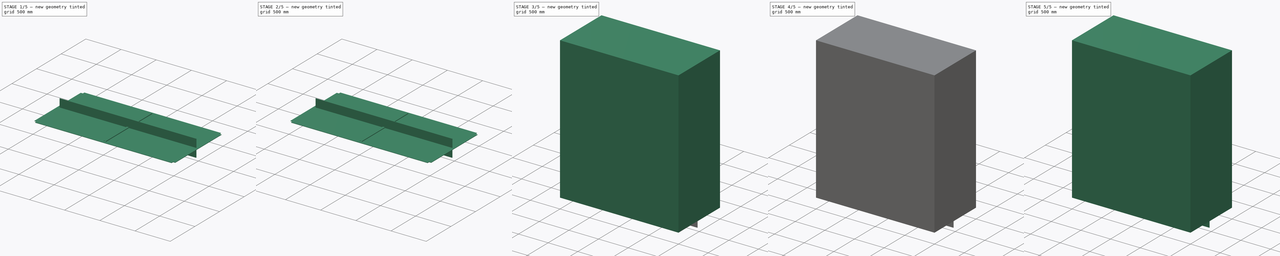
[diagram: build sequence overview — one tinted view per stage of 5, left to right]
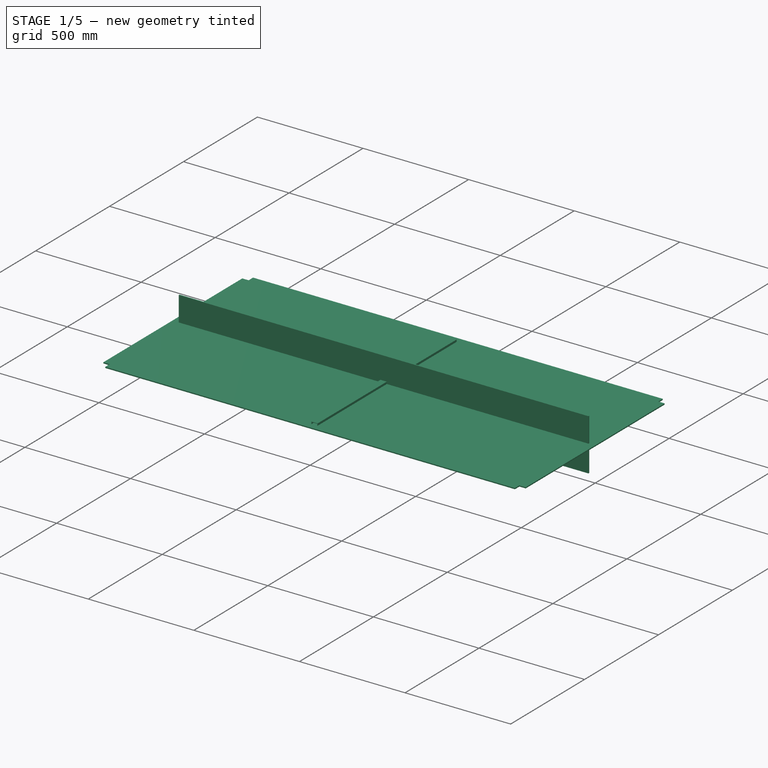
[diagram: stage 1 of 5 — iso view after this stage's code; geometry added in this stage tinted green]
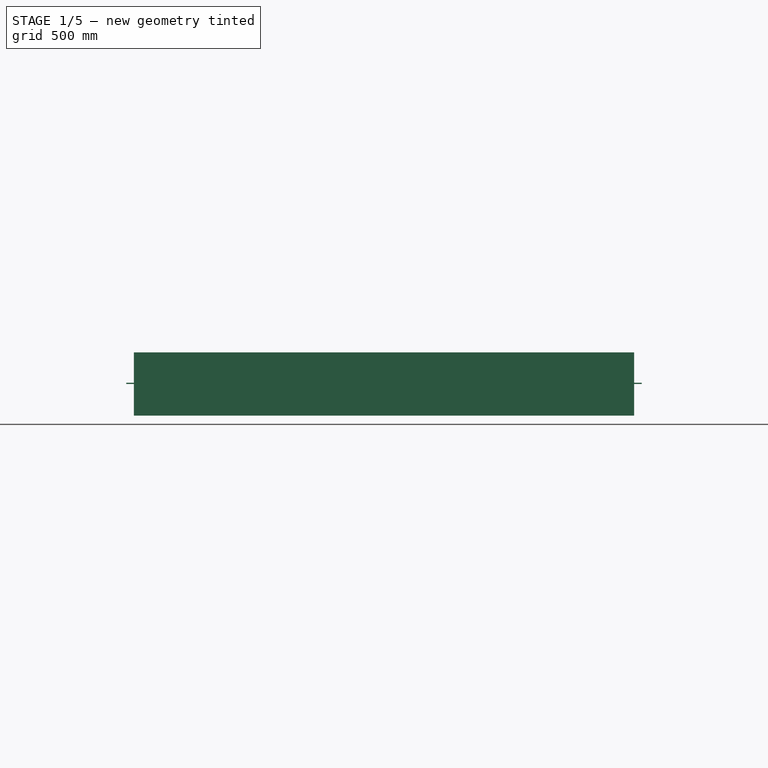
[diagram: stage 1 of 5 — front view after this stage's code; geometry added in this stage tinted green]
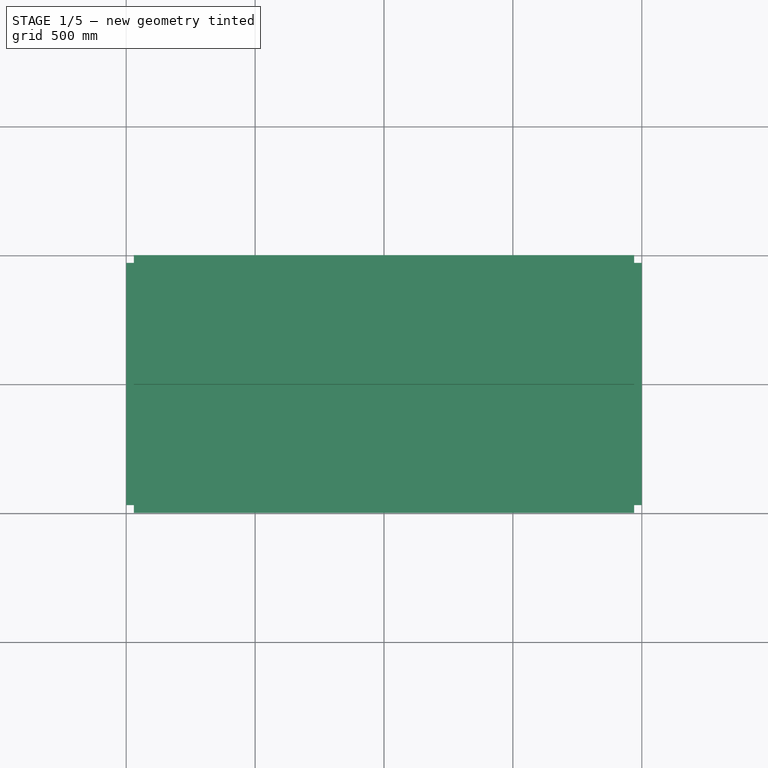
[diagram: stage 1 of 5 — top view after this stage's code; geometry added in this stage tinted green]
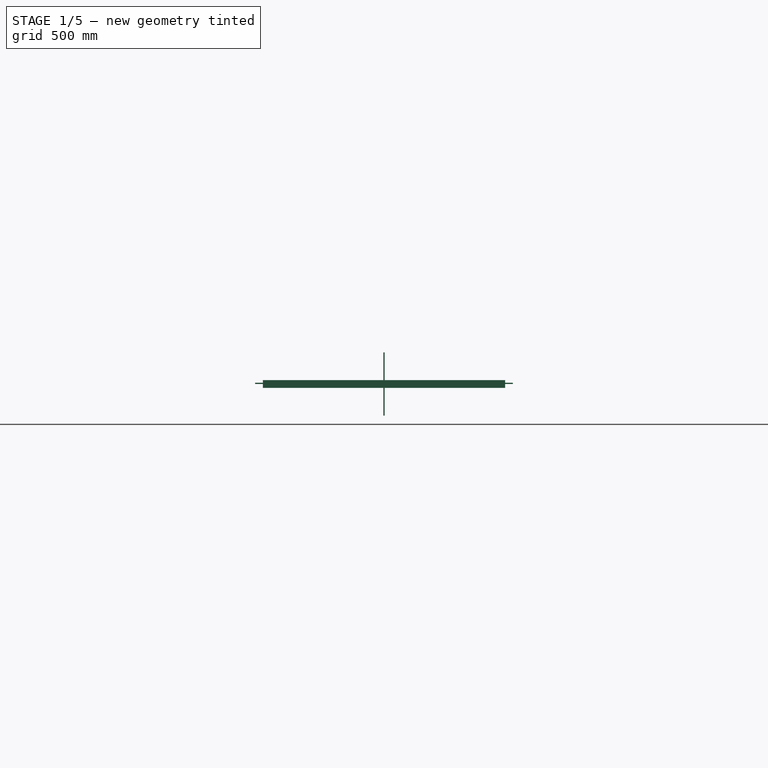
[diagram: stage 1 of 5 — right view after this stage's code; geometry added in this stage tinted green]
FCSTD DOCUMENT  (FreeCAD 0.21RUnknown)
Label: b48-bike-thing
License: All rights reserved
LicenseURL: http://en.wikipedia.org/wiki/All_rights_reserved
objects: Sketcher::SketchObject×16, PartDesign::Pad×16, PartDesign::Body×16, PartDesign::Fillet×12, Spreadsheet::Sheet×1, App::DocumentObjectGroup×1
note: 88 computed .brp shape members not serialized (recipe doc carries the construction recipe); baked Part::Feature solids carry a one-line shape summary decoded from their .brp

FEATURE [PartDesign::Body] Body015  label="jekl007"
  Group = -> [Sketch014,Pad014,Fillet013]
  Origin = -> Origin015
  Placement = pos=(985,0,315) rot=(0,0,1;0rad)
  Tip = -> Fillet013
  expr: .Placement.Base.x = <<Spreadsheet>>.object_X / 2 - <<Spreadsheet>>.jekl_007_size / 2
  expr: .Placement.Base.z = <<Spreadsheet>>.object_ground_clearance + <<Spreadsheet>>.jekl_005_size / 2
FEATURE [Sketcher::SketchObject] Sketch015  label="Sketch009"
  FullyConstrained = true
  MapMode = 5
  Placement = pos=(0,0,0) rot=(1,0,0;1.5708rad)
  Support = -> [XZ_Plane016]
  expr: Constraints[10] = <<Spreadsheet>>.jekl_009_size
  expr: Constraints[21] = <<Spreadsheet>>.jekl_009_wall_thickness
  sketch-geometry (8):
    g0: LineSegment StartX=-15 StartY=-15 StartZ=0 EndX=15 EndY=-15 EndZ=0
    g1: LineSegment StartX=15 StartY=-15 StartZ=0 EndX=15 EndY=15 EndZ=0
    g2: LineSegment StartX=15 StartY=15 StartZ=0 EndX=-15 EndY=15 EndZ=0
    g3: LineSegment StartX=-15 StartY=15 StartZ=0 EndX=-15 EndY=-15 EndZ=0
    g4: LineSegment StartX=-13 StartY=-13 StartZ=0 EndX=13 EndY=-13 EndZ=0
    g5: LineSegment StartX=13 StartY=-13 StartZ=0 EndX=13 EndY=13 EndZ=0
    g6: LineSegment StartX=13 StartY=13 StartZ=0 EndX=-13 EndY=13 EndZ=0
    g7: LineSegment StartX=-13 StartY=13 StartZ=0 EndX=-13 EndY=-13 EndZ=0
  constraints (22):
    c: Coincident(g0,g1)
    c: Coincident(g1,g2)
    c: Coincident(g2,g3)
    c: Coincident(g3,g0)
    c: Horizontal(g0)
    c: Horizontal(g2)
    c: Vertical(g1)
    c: Vertical(g3)
    c: Symmetric(g1,g0,g-1)
    c: Equal(g1,g0)
    c: Distance(g0) = 30
    c: Coincident(g4,g5)
    c: Coincident(g5,g6)
    c: Coincident(g6,g7)
    c: Coincident(g7,g4)
    c: Horizontal(g4)
    c: Horizontal(g6)
    c: Vertical(g5)
    c: Vertical(g7)
    c: Symmetric(g5,g4,g-1)
    c: Equal(g4,g5)
    c: Distance(g4) = 26
FEATURE [PartDesign::Pad] Pad015  label="Pad009"
  Direction = (0,-1,-2e-16)
  Length = 940
  Length2 = 10
  Midplane = true
  Placement = pos=(0,0,0) rot=(1,0,0;1.5708rad)
  Profile = -> Sketch015
  ReferenceAxis = -> Sketch015 [N_Axis]
  Type = 0
  expr: Length = <<Spreadsheet>>.jekl_009_height
FEATURE [PartDesign::Body] Body016  label="jekl009"
  Group = -> [Sketch015,Pad015,Fillet014]
  Origin = -> Origin016
  Placement = pos=(-985,0,2135) rot=(0,0,1;0rad)
  Tip = -> Fillet014
  expr: .Placement.Base.x = -<<Spreadsheet>>.object_X / 2 + <<Spreadsheet>>.jekl_005_size / 2
  expr: .Placement.Base.z = <<Spreadsheet>>.object_Z - <<Spreadsheet>>.object_top_offset - <<Spreadsheet>>.jekl_009_size / 2
FEATURE [Sketcher::SketchObject] Sketch016  label="Sketch011"
  FullyConstrained = true
  MapMode = 5
  Placement = pos=(0,0,0) rot=(1,0,0;1.5708rad)
  Support = -> [XZ_Plane017]
  expr: Constraints[10] = <<Spreadsheet>>.jekl_011_size
  expr: Constraints[21] = <<Spreadsheet>>.jekl_011_wall_thickness
  sketch-geometry (8):
    g0: LineSegment StartX=-15 StartY=-15 StartZ=0 EndX=15 EndY=-15 EndZ=0
    g1: LineSegment StartX=15 StartY=-15 StartZ=0 EndX=15 EndY=15 EndZ=0
    g2: LineSegment StartX=15 StartY=15 StartZ=0 EndX=-15 EndY=15 EndZ=0
    g3: LineSegment StartX=-15 StartY=15 StartZ=0 EndX=-15 EndY=-15 EndZ=0
    g4: LineSegment StartX=-13 StartY=-13 StartZ=0 EndX=13 EndY=-13 EndZ=0
    g5: LineSegment StartX=13 StartY=-13 StartZ=0 EndX=13 EndY=13 EndZ=0
    g6: LineSegment StartX=13 StartY=13 StartZ=0 EndX=-13 EndY=13 EndZ=0
    g7: LineSegment StartX=-13 StartY=13 StartZ=0 EndX=-13 EndY=-13 EndZ=0
  constraints (22):
    c: Coincident(g0,g1)
    c: Coincident(g1,g2)
    c: Coincident(g2,g3)
    c: Coincident(g3,g0)
    c: Horizontal(g0)
    c: Horizontal(g2)
    c: Vertical(g1)
    c: Vertical(g3)
    c: Symmetric(g1,g0,g-1)
    c: Equal(g1,g0)
    c: Distance(g0) = 30
    c: Coincident(g4,g5)
    c: Coincident(g5,g6)
    c: Coincident(g6,g7)
    c: Coincident(g7,g4)
    c: Horizontal(g4)
    c: Horizontal(g6)
    c: Vertical(g5)
    c: Vertical(g7)
    c: Symmetric(g5,g4,g-1)
    c: Equal(g4,g5)
    c: Distance(g4) = 26
FEATURE [PartDesign::Pad] Pad016  label="Pad011"
  Direction = (0,-1,-2e-16)
  Length = 940
  Length2 = 10
  Midplane = true
  Placement = pos=(0,0,0) rot=(1,0,0;1.5708rad)
  Profile = -> Sketch016
  ReferenceAxis = -> Sketch016 [N_Axis]
  Type = 0
  expr: Length = <<Spreadsheet>>.jekl_011_height
FEATURE [PartDesign::Fillet] Fillet015  label="Fillet011"
  Base = -> Pad016 [Edge5,Edge8,Edge1,Edge2]
  BaseFeature = -> Pad016
  Placement = pos=(0,0,0) rot=(1,0,0;1.5708rad)
  Radius = 1
  SupportTransform = false
  UseAllEdges = false
  expr: Radius = <<Spreadsheet>>.jekl_011_fillet
FEATURE [PartDesign::Body] Body017  label="jekl011"
  Group = -> [Sketch016,Pad016,Fillet015]
  Origin = -> Origin017
  Placement = pos=(985,0,2135) rot=(0,0,1;0rad)
  Tip = -> Fillet015
  expr: .Placement.Base.x = <<Spreadsheet>>.object_X / 2 - <<Spreadsheet>>.jekl_011_size / 2
  expr: .Placement.Base.z = <<Spreadsheet>>.object_Z - <<Spreadsheet>>.object_top_offset - <<Spreadsheet>>.jekl_011_size / 2
FEATURE [Sketcher::SketchObject] Sketch017
  FullyConstrained = true
  MapMode = 5
  Support = -> [XY_Plane018]
  expr: Constraints[48] = <<Spreadsheet>>.jekl_001_size
  expr: Constraints[49] = <<Spreadsheet>>.jekl_002_size
  expr: Constraints[50] = <<Spreadsheet>>.jekl_003_size
  expr: Constraints[51] = <<Spreadsheet>>.jekl_004_size
  expr: Constraints[52] = <<Spreadsheet>>.object_X
  expr: Constraints[53] = <<Spreadsheet>>.object_Y
  sketch-geometry (20):
    g0: LineSegment StartX=-1000 StartY=500 StartZ=0 EndX=-970 EndY=500 EndZ=0
    g1: LineSegment StartX=-970 StartY=500 StartZ=0 EndX=-970 EndY=470 EndZ=0
    g2: LineSegment StartX=-970 StartY=470 StartZ=0 EndX=-1000 EndY=470 EndZ=0
    g3: LineSegment StartX=-1000 StartY=470 StartZ=0 EndX=-1000 EndY=500 EndZ=0
    g4: LineSegment StartX=1000 StartY=500 StartZ=0 EndX=970 EndY=500 EndZ=0
    g5: LineSegment StartX=970 StartY=500 StartZ=0 EndX=970 EndY=470 EndZ=0
    g6: LineSegment StartX=970 StartY=470 StartZ=0 EndX=1000 EndY=470 EndZ=0
    g7: LineSegment StartX=1000 StartY=470 StartZ=0 EndX=1000 EndY=500 EndZ=0
    g8: LineSegment StartX=-1000 StartY=-500 StartZ=0 EndX=-970 EndY=-500 EndZ=0
    g9: LineSegment StartX=-970 StartY=-500 StartZ=0 EndX=-970 EndY=-470 EndZ=0
    g10: LineSegment StartX=-970 StartY=-470 StartZ=0 EndX=-1000 EndY=-470 EndZ=0
    g11: LineSegment StartX=-1000 StartY=-470 StartZ=0 EndX=-1000 EndY=-500 EndZ=0
    g12: LineSegment StartX=1000 StartY=-500 StartZ=0 EndX=970 EndY=-500 EndZ=0
    g13: LineSegment StartX=970 StartY=-500 StartZ=0 EndX=970 EndY=-470 EndZ=0
    g14: LineSegment StartX=970 StartY=-470 StartZ=0 EndX=1000 EndY=-470 EndZ=0
    g15: LineSegment StartX=1000 StartY=-470 StartZ=0 EndX=1000 EndY=-500 EndZ=0
    g16: LineSegment StartX=-970 StartY=500 StartZ=0 EndX=970 EndY=500 EndZ=0
    g17: LineSegment StartX=1000 StartY=470 StartZ=0 EndX=1000 EndY=-470 EndZ=0
    g18: LineSegment StartX=970 StartY=-500 StartZ=0 EndX=-970 EndY=-500 EndZ=0
    g19: LineSegment StartX=-1000 StartY=-470 StartZ=0 EndX=-1000 EndY=470 EndZ=0
  constraints (55):
    c: Coincident(g0,g1)
    c: Coincident(g1,g2)
    c: Coincident(g2,g3)
    c: Coincident(g3,g0)
    c: Horizontal(g0)
    c: Horizontal(g2)
    c: Vertical(g1)
    c: Vertical(g3)
    c: Coincident(g4,g5)
    c: Coincident(g5,g6)
    c: Coincident(g6,g7)
    c: Coincident(g7,g4)
    c: Horizontal(g4)
    c: Horizontal(g6)
    c: Vertical(g5)
    c: Vertical(g7)
    c: Coincident(g8,g9)
    c: Coincident(g9,g10)
    c: Coincident(g10,g11)
    c: Coincident(g11,g8)
    c: Horizontal(g8)
    c: Horizontal(g10)
    c: Vertical(g9)
    c: Vertical(g11)
    c: Coincident(g12,g13)
    c: Coincident(g13,g14)
    c: Coincident(g14,g15)
    c: Coincident(g15,g12)
    c: Horizontal(g12)
    c: Horizontal(g14)
    c: Vertical(g13)
    c: Vertical(g15)
    c: Equal(g12,g15)
    c: Equal(g6,g7)
    c: Equal(g2,g1)
    c: Equal(g8,g9)
    c: Coincident(g16,g1)
    c: Coincident(g16,g5)
    c: Horizontal(g16)
    c: Coincident(g17,g6)
    c: Coincident(g17,g14)
    c: Coincident(g18,g13)
    c: Coincident(g18,g9)
    c: Horizontal(g18)
    c: Coincident(g19,g10)
    c: Coincident(g19,g2)
    c: Vertical(g19)
    c: Vertical(g17)
    c: Distance(g0) = 30
    c: Distance(g4) = 30
    c: Distance(g12) = 30
    c: Distance(g8) = 30
    c: Distance(g8,g12) = 2000
    c: Distance(g4,g12) = 1000
    c: Symmetric(g8,g4,g-1)
FEATURE [PartDesign::Pad] Pad017
  Direction = (0,0,1)
  Length = 5
  Length2 = 10
  Profile = -> Sketch017
  ReferenceAxis = -> Sketch017 [N_Axis]
  Type = 0
  expr: Length = <<Spreadsheet>>.plate001_thickness
FEATURE [PartDesign::Body] Body018  label="plate001"
  Group = -> [Sketch017,Pad017]
  Origin = -> Origin018
  Placement = pos=(0,0,330) rot=(0,0,1;0rad)
  Tip = -> Pad017
  expr: .Placement.Base.z = <<Spreadsheet>>.object_ground_clearance + <<Spreadsheet>>.jekl_005_size
FEATURE [Sketcher::SketchObject] Sketch018
  FullyConstrained = true
  MapMode = 5
  Support = -> [XY_Plane019]
  expr: Constraints[48] = <<Spreadsheet>>.jekl_001_size
  expr: Constraints[49] = <<Spreadsheet>>.jekl_002_size
  expr: Constraints[50] = <<Spreadsheet>>.jekl_003_size
  expr: Constraints[51] = <<Spreadsheet>>.jekl_004_size
  expr: Constraints[52] = <<Spreadsheet>>.object_X
  expr: Constraints[53] = <<Spreadsheet>>.object_Y
  sketch-geometry (20):
    g0: LineSegment StartX=-1000 StartY=500 StartZ=0 EndX=-970 EndY=500 EndZ=0
    g1: LineSegment StartX=-970 StartY=500 StartZ=0 EndX=-970 EndY=470 EndZ=0
    g2: LineSegment StartX=-970 StartY=470 StartZ=0 EndX=-1000 EndY=470 EndZ=0
    g3: LineSegment StartX=-1000 StartY=470 StartZ=0 EndX=-1000 EndY=500 EndZ=0
    g4: LineSegment StartX=1000 StartY=500 StartZ=0 EndX=970 EndY=500 EndZ=0
    g5: LineSegment StartX=970 StartY=500 StartZ=0 EndX=970 EndY=470 EndZ=0
    g6: LineSegment StartX=970 StartY=470 StartZ=0 EndX=1000 EndY=470 EndZ=0
    g7: LineSegment StartX=1000 StartY=470 StartZ=0 EndX=1000 EndY=500 EndZ=0
    g8: LineSegment StartX=-1000 StartY=-500 StartZ=0 EndX=-970 EndY=-500 EndZ=0
    g9: LineSegment StartX=-970 StartY=-500 StartZ=0 EndX=-970 EndY=-470 EndZ=0
    g10: LineSegment StartX=-970 StartY=-470 StartZ=0 EndX=-1000 EndY=-470 EndZ=0
    g11: LineSegment StartX=-1000 StartY=-470 StartZ=0 EndX=-1000 EndY=-500 EndZ=0
    g12: LineSegment StartX=1000 StartY=-500 StartZ=0 EndX=970 EndY=-500 EndZ=0
    g13: LineSegment StartX=970 StartY=-500 StartZ=0 EndX=970 EndY=-470 EndZ=0
    g14: LineSegment StartX=970 StartY=-470 StartZ=0 EndX=1000 EndY=-470 EndZ=0
    g15: LineSegment StartX=1000 StartY=-470 StartZ=0 EndX=1000 EndY=-500 EndZ=0
    g16: LineSegment StartX=-970 StartY=500 StartZ=0 EndX=970 EndY=500 EndZ=0
    g17: LineSegment StartX=1000 StartY=470 StartZ=0 EndX=1000 EndY=-470 EndZ=0
    g18: LineSegment StartX=970 StartY=-500 StartZ=0 EndX=-970 EndY=-500 EndZ=0
    g19: LineSegment StartX=-1000 StartY=-470 StartZ=0 EndX=-1000 EndY=470 EndZ=0
  constraints (55):
    c: Coincident(g0,g1)
    c: Coincident(g1,g2)
    c: Coincident(g2,g3)
    c: Coincident(g3,g0)
    c: Horizontal(g0)
    c: Horizontal(g2)
    c: Vertical(g1)
    c: Vertical(g3)
    c: Coincident(g4,g5)
    c: Coincident(g5,g6)
    c: Coincident(g6,g7)
    c: Coincident(g7,g4)
    c: Horizontal(g4)
    c: Horizontal(g6)
    c: Vertical(g5)
    c: Vertical(g7)
    c: Coincident(g8,g9)
    c: Coincident(g9,g10)
    c: Coincident(g10,g11)
    c: Coincident(g11,g8)
    c: Horizontal(g8)
    c: Horizontal(g10)
    c: Vertical(g9)
    c: Vertical(g11)
    c: Coincident(g12,g13)
    c: Coincident(g13,g14)
    c: Coincident(g14,g15)
    c: Coincident(g15,g12)
    c: Horizontal(g12)
    c: Horizontal(g14)
    c: Vertical(g13)
    c: Vertical(g15)
    c: Equal(g12,g15)
    c: Equal(g6,g7)
    c: Equal(g2,g1)
    c: Equal(g8,g9)
    c: Coincident(g16,g1)
    c: Coincident(g16,g5)
    c: Horizontal(g16)
    c: Coincident(g17,g6)
    c: Coincident(g17,g14)
    c: Coincident(g18,g13)
    c: Coincident(g18,g9)
    c: Horizontal(g18)
    c: Coincident(g19,g10)
    c: Coincident(g19,g2)
    c: Vertical(g19)
    c: Vertical(g17)
    c: Distance(g0) = 30
    c: Distance(g4) = 30
    c: Distance(g12) = 30
    c: Distance(g8) = 30
    c: Distance(g8,g12) = 2000
    c: Distance(g4,g12) = 1000
    c: Symmetric(g8,g4,g-1)
FEATURE [PartDesign::Pad] Pad018
  Direction = (0,0,1)
  Length = 5
  Length2 = 10
  Profile = -> Sketch018
  ReferenceAxis = -> Sketch018 [N_Axis]
  Type = 0
  expr: Length = <<Spreadsheet>>.plate001_thickness
FEATURE [PartDesign::Body] Body019  label="plate002"
  Group = -> [Sketch018,Pad018]
  Origin = -> Origin019
  Placement = pos=(0,0,2150) rot=(0,0,1;0rad)
  Tip = -> Pad018
  expr: .Placement.Base.z = <<Spreadsheet>>.object_Z - <<Spreadsheet>>.object_top_offset
FEATURE [Sketcher::SketchObject] Sketch019
  FullyConstrained = true
  MapMode = 5
  Placement = pos=(0,0,0) rot=(1,0,0;1.5708rad)
  Support = -> [XZ_Plane020]
  expr: Constraints[10] = <<Spreadsheet>>.plate003_Y
  expr: Constraints[9] = <<Spreadsheet>>.plate003_X
  sketch-geometry (4):
    g0: LineSegment StartX=-970 StartY=-122.5 StartZ=0 EndX=970 EndY=-122.5 EndZ=0
    g1: LineSegment StartX=970 StartY=-122.5 StartZ=0 EndX=970 EndY=122.5 EndZ=0
    g2: LineSegment StartX=970 StartY=122.5 StartZ=0 EndX=-970 EndY=122.5 EndZ=0
    g3: LineSegment StartX=-970 StartY=122.5 StartZ=0 EndX=-970 EndY=-122.5 EndZ=0
  constraints (11):
    c: Coincident(g0,g1)
    c: Coincident(g1,g2)
    c: Coincident(g2,g3)
    c: Coincident(g3,g0)
    c: Horizontal(g0)
    c: Horizontal(g2)
    c: Vertical(g1)
    c: Vertical(g3)
    c: Symmetric(g1,g0,g-1)
    c: Distance(g0) = 1940
    c: Distance(g1) = 245
FEATURE [PartDesign::Pad] Pad019
  Direction = (0,-1,-2e-16)
  Length = 5
  Length2 = 10
  Midplane = true
  Placement = pos=(0,0,0) rot=(1,0,0;1.5708rad)
  Profile = -> Sketch019
  ReferenceAxis = -> Sketch019 [N_Axis]
  Type = 0
  expr: Length = <<Spreadsheet>>.plate003_thickness
FEATURE [PartDesign::Body] Body020  label="plate003"
  Group = -> [Sketch019,Pad019]
  Origin = -> Origin020
  Placement = pos=(0,-497.5,2277.5) rot=(0,0,1;0rad)
  Tip = -> Pad019
  expr: .Placement.Base.y = -<<Spreadsheet>>.object_Y / 2 + <<Spreadsheet>>.plate003_thickness / 2
  expr: .Placement.Base.z = <<Spreadsheet>>.object_Z - <<Spreadsheet>>.plate003_Y / 2
FEATURE [App::DocumentObjectGroup] Group  label="Parts"
  Group = -> [Body,Body001,Body002,Body003,Body014,Body006,Body015,Body005,Body016,Body010,Body017,Body012,Body018,Body019,Body020]
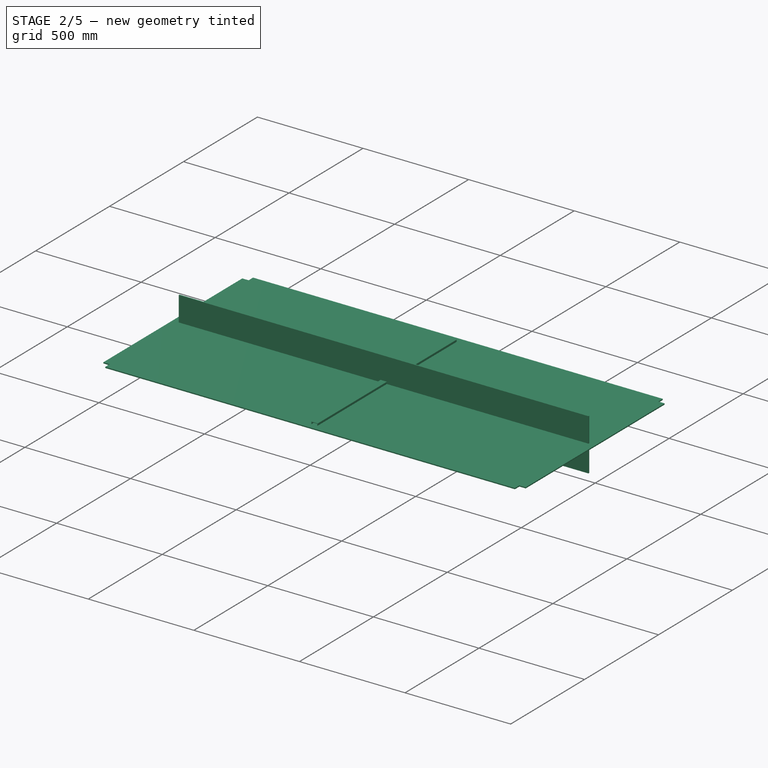
[diagram: stage 2 of 5 — iso view after this stage's code; geometry added in this stage tinted green]
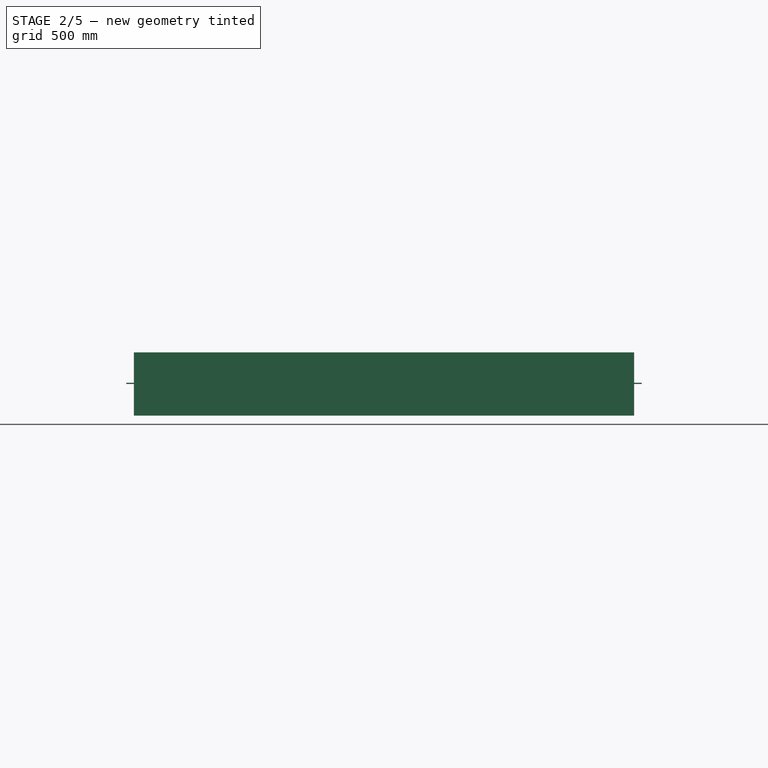
[diagram: stage 2 of 5 — front view after this stage's code; geometry added in this stage tinted green]
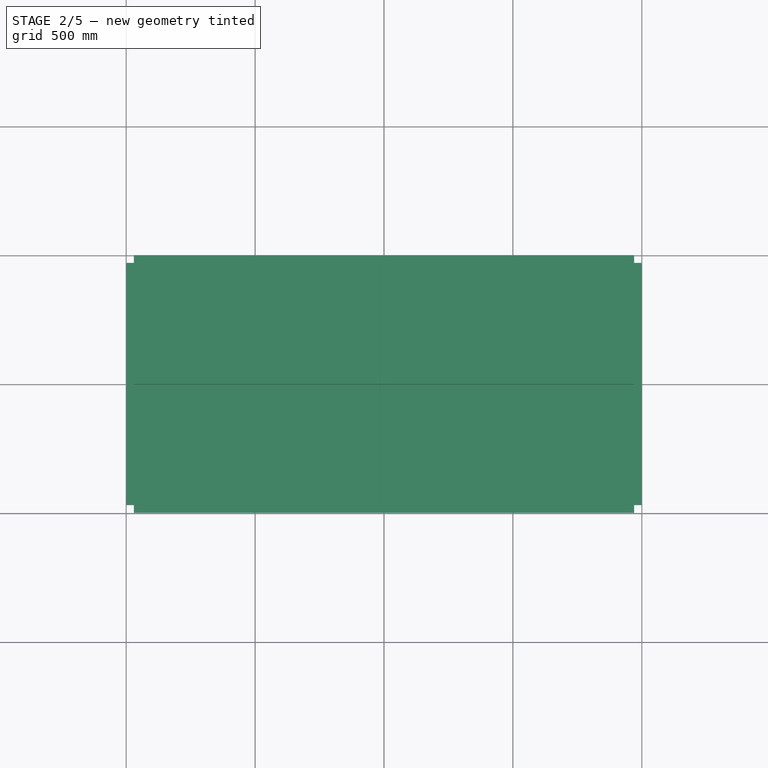
[diagram: stage 2 of 5 — top view after this stage's code; geometry added in this stage tinted green]
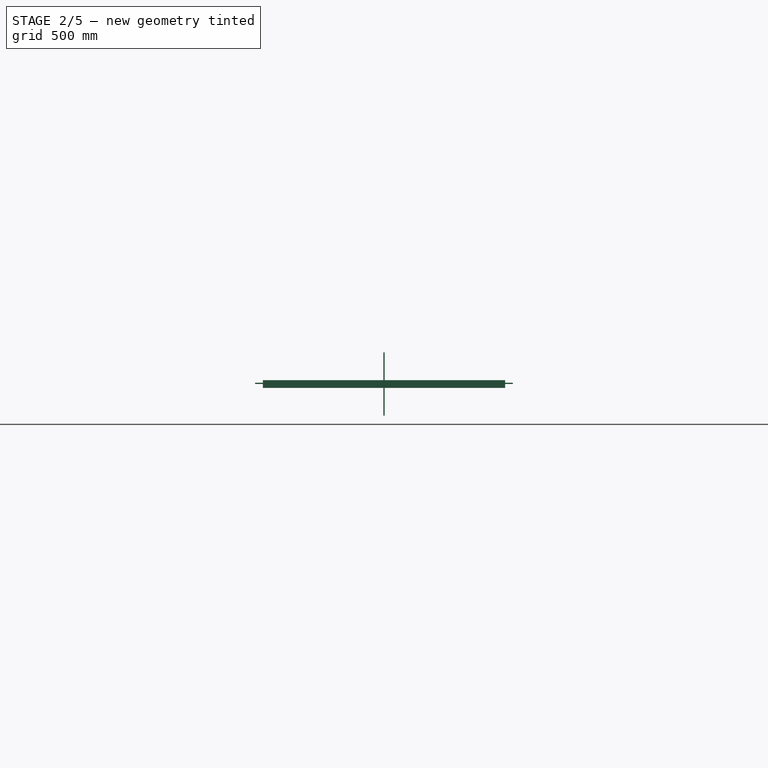
[diagram: stage 2 of 5 — right view after this stage's code; geometry added in this stage tinted green]
FEATURE [PartDesign::Body] Body013  label="Boundary"
  Group = -> [Sketch012,Pad012]
  Origin = -> Origin013
  Tip = -> Pad012
FEATURE [Sketcher::SketchObject] Sketch013  label="Sketch005"
  FullyConstrained = true
  MapMode = 5
  Placement = pos=(0,0,0) rot=(1,0,0;1.5708rad)
  Support = -> [XZ_Plane014]
  expr: Constraints[10] = <<Spreadsheet>>.jekl_005_size
  expr: Constraints[21] = <<Spreadsheet>>.jekl_005_wall_thickness
  sketch-geometry (8):
    g0: LineSegment StartX=-15 StartY=-15 StartZ=0 EndX=15 EndY=-15 EndZ=0
    g1: LineSegment StartX=15 StartY=-15 StartZ=0 EndX=15 EndY=15 EndZ=0
    g2: LineSegment StartX=15 StartY=15 StartZ=0 EndX=-15 EndY=15 EndZ=0
    g3: LineSegment StartX=-15 StartY=15 StartZ=0 EndX=-15 EndY=-15 EndZ=0
    g4: LineSegment StartX=-13 StartY=-13 StartZ=0 EndX=13 EndY=-13 EndZ=0
    g5: LineSegment StartX=13 StartY=-13 StartZ=0 EndX=13 EndY=13 EndZ=0
    g6: LineSegment StartX=13 StartY=13 StartZ=0 EndX=-13 EndY=13 EndZ=0
    g7: LineSegment StartX=-13 StartY=13 StartZ=0 EndX=-13 EndY=-13 EndZ=0
  constraints (22):
    c: Coincident(g0,g1)
    c: Coincident(g1,g2)
    c: Coincident(g2,g3)
    c: Coincident(g3,g0)
    c: Horizontal(g0)
    c: Horizontal(g2)
    c: Vertical(g1)
    c: Vertical(g3)
    c: Symmetric(g1,g0,g-1)
    c: Equal(g1,g0)
    c: Distance(g0) = 30
    c: Coincident(g4,g5)
    c: Coincident(g5,g6)
    c: Coincident(g6,g7)
    c: Coincident(g7,g4)
    c: Horizontal(g4)
    c: Horizontal(g6)
    c: Vertical(g5)
    c: Vertical(g7)
    c: Symmetric(g5,g4,g-1)
    c: Equal(g4,g5)
    c: Distance(g4) = 26
FEATURE [PartDesign::Pad] Pad013  label="Pad005"
  Direction = (0,-1,-2e-16)
  Length = 940
  Length2 = 10
  Midplane = true
  Placement = pos=(0,0,0) rot=(1,0,0;1.5708rad)
  Profile = -> Sketch013
  ReferenceAxis = -> Sketch013 [N_Axis]
  Type = 0
  expr: Length = <<Spreadsheet>>.jekl_005_height
FEATURE [PartDesign::Fillet] Fillet012  label="Fillet005"
  Base = -> Pad013 [Edge5,Edge8,Edge1,Edge2]
  BaseFeature = -> Pad013
  Placement = pos=(0,0,0) rot=(1,0,0;1.5708rad)
  Radius = 1
  SupportTransform = false
  UseAllEdges = false
  expr: Radius = <<Spreadsheet>>.jekl_005_fillet
FEATURE [PartDesign::Body] Body014  label="jekl005"
  Group = -> [Sketch013,Pad013,Fillet012]
  Origin = -> Origin014
  Placement = pos=(-985,0,315) rot=(0,0,1;0rad)
  Tip = -> Fillet012
  expr: .Placement.Base.x = -<<Spreadsheet>>.object_X / 2 + <<Spreadsheet>>.jekl_005_size / 2
  expr: .Placement.Base.z = <<Spreadsheet>>.object_ground_clearance + <<Spreadsheet>>.jekl_005_size / 2
FEATURE [Sketcher::SketchObject] Sketch014  label="Sketch007"
  FullyConstrained = true
  MapMode = 5
  Placement = pos=(0,0,0) rot=(1,0,0;1.5708rad)
  Support = -> [XZ_Plane015]
  expr: Constraints[10] = <<Spreadsheet>>.jekl_007_size
  expr: Constraints[21] = <<Spreadsheet>>.jekl_007_wall_thickness
  sketch-geometry (8):
    g0: LineSegment StartX=-15 StartY=-15 StartZ=0 EndX=15 EndY=-15 EndZ=0
    g1: LineSegment StartX=15 StartY=-15 StartZ=0 EndX=15 EndY=15 EndZ=0
    g2: LineSegment StartX=15 StartY=15 StartZ=0 EndX=-15 EndY=15 EndZ=0
    g3: LineSegment StartX=-15 StartY=15 StartZ=0 EndX=-15 EndY=-15 EndZ=0
    g4: LineSegment StartX=-13 StartY=-13 StartZ=0 EndX=13 EndY=-13 EndZ=0
    g5: LineSegment StartX=13 StartY=-13 StartZ=0 EndX=13 EndY=13 EndZ=0
    g6: LineSegment StartX=13 StartY=13 StartZ=0 EndX=-13 EndY=13 EndZ=0
    g7: LineSegment StartX=-13 StartY=13 StartZ=0 EndX=-13 EndY=-13 EndZ=0
  constraints (22):
    c: Coincident(g0,g1)
    c: Coincident(g1,g2)
    c: Coincident(g2,g3)
    c: Coincident(g3,g0)
    c: Horizontal(g0)
    c: Horizontal(g2)
    c: Vertical(g1)
    c: Vertical(g3)
    c: Symmetric(g1,g0,g-1)
    c: Equal(g1,g0)
    c: Distance(g0) = 30
    c: Coincident(g4,g5)
    c: Coincident(g5,g6)
    c: Coincident(g6,g7)
    c: Coincident(g7,g4)
    c: Horizontal(g4)
    c: Horizontal(g6)
    c: Vertical(g5)
    c: Vertical(g7)
    c: Symmetric(g5,g4,g-1)
    c: Equal(g4,g5)
    c: Distance(g4) = 26
FEATURE [PartDesign::Pad] Pad014  label="Pad007"
  Direction = (0,-1,-2e-16)
  Length = 940
  Length2 = 10
  Midplane = true
  Placement = pos=(0,0,0) rot=(1,0,0;1.5708rad)
  Profile = -> Sketch014
  ReferenceAxis = -> Sketch014 [N_Axis]
  Type = 0
  expr: Length = <<Spreadsheet>>.jekl_007_height
FEATURE [PartDesign::Fillet] Fillet013  label="Fillet007"
  Base = -> Pad014 [Edge5,Edge8,Edge1,Edge2]
  BaseFeature = -> Pad014
  Placement = pos=(0,0,0) rot=(1,0,0;1.5708rad)
  Radius = 1
  SupportTransform = false
  UseAllEdges = false
  expr: Radius = <<Spreadsheet>>.jekl_007_fillet
FEATURE [PartDesign::Fillet] Fillet014  label="Fillet009"
  Base = -> Pad015 [Edge5,Edge8,Edge1,Edge2]
  BaseFeature = -> Pad015
  Placement = pos=(0,0,0) rot=(1,0,0;1.5708rad)
  Radius = 1
  SupportTransform = false
  UseAllEdges = false
  expr: Radius = <<Spreadsheet>>.jekl_009_fillet
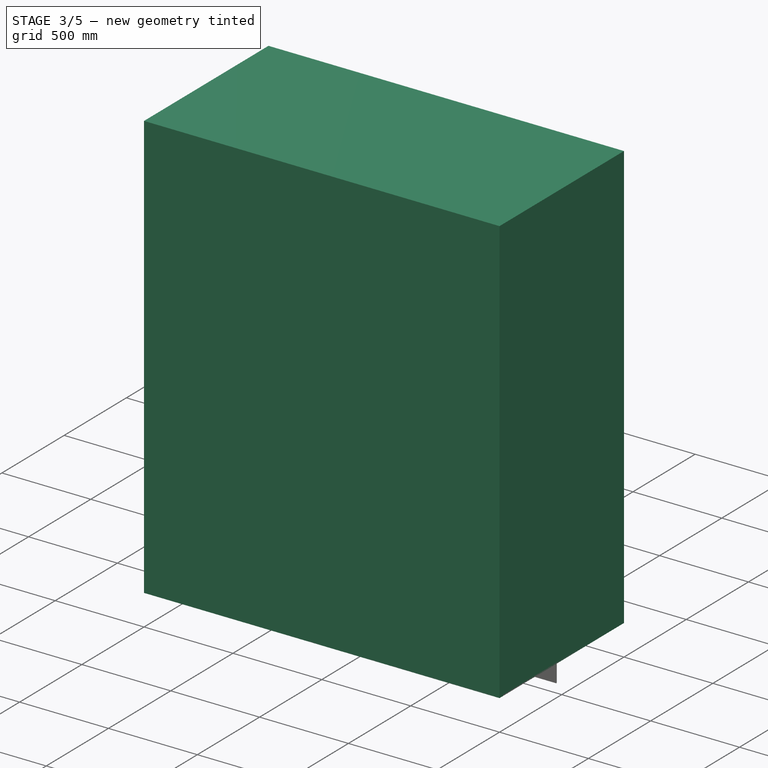
[diagram: stage 3 of 5 — iso view after this stage's code; geometry added in this stage tinted green]
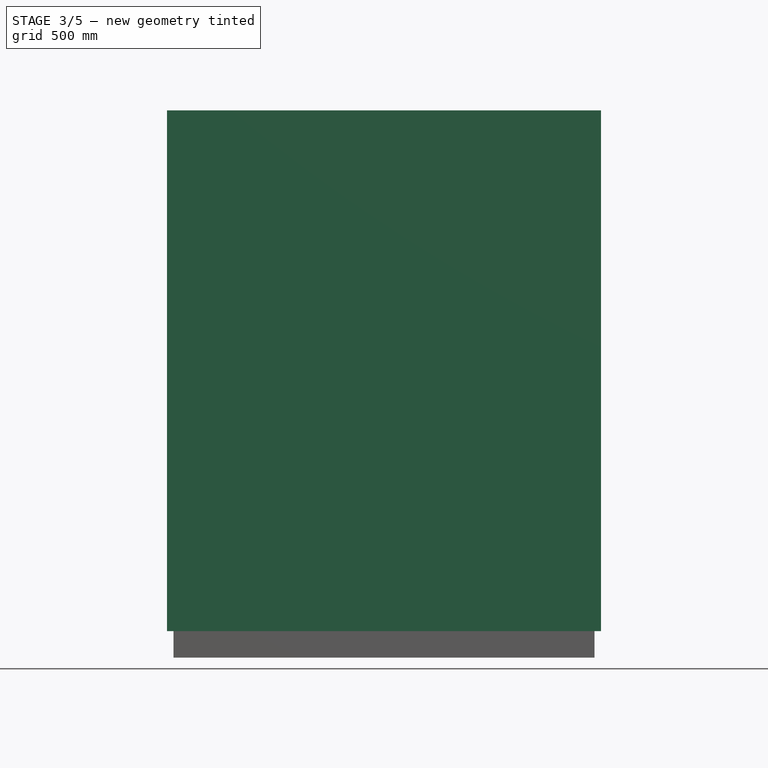
[diagram: stage 3 of 5 — front view after this stage's code; geometry added in this stage tinted green]
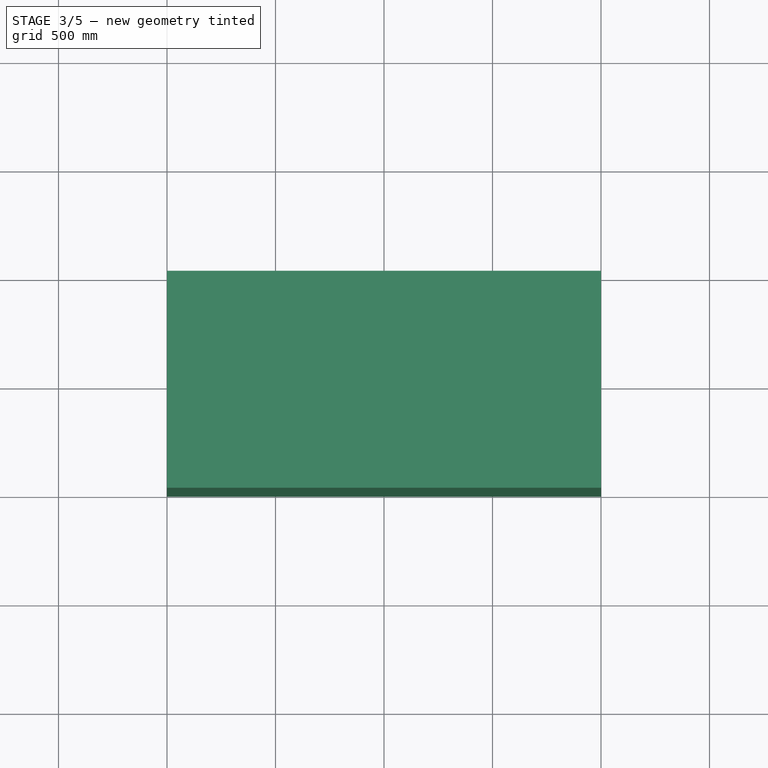
[diagram: stage 3 of 5 — top view after this stage's code; geometry added in this stage tinted green]
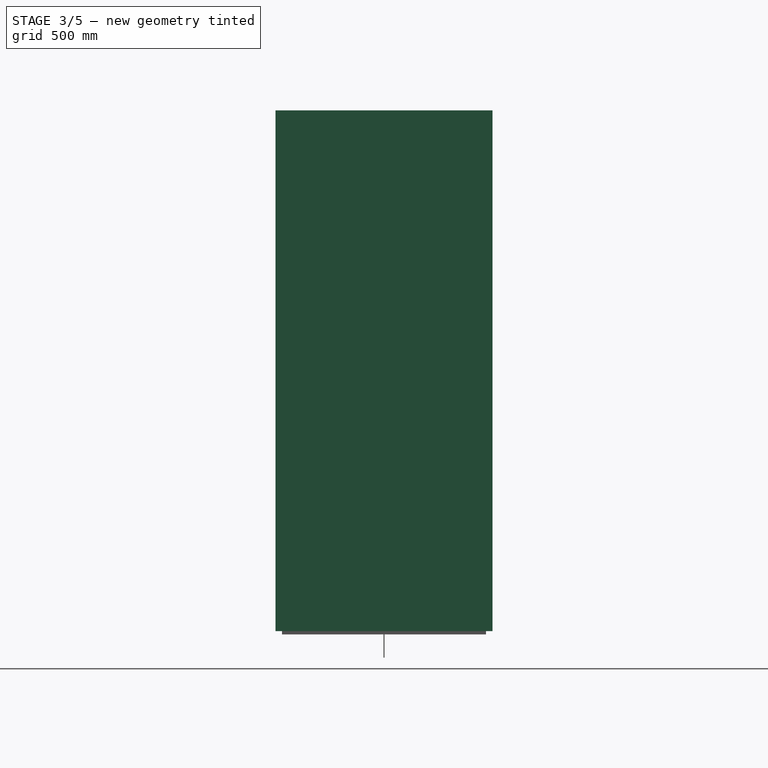
[diagram: stage 3 of 5 — right view after this stage's code; geometry added in this stage tinted green]
FEATURE [PartDesign::Body] Body005  label="jekl008"
  Group = -> [Sketch004,Pad004,Fillet004]
  Origin = -> Origin005
  Placement = pos=(0,-485,315) rot=(0,0,315;0rad)
  Tip = -> Fillet004
  expr: .Placement.Base.y = -<<Spreadsheet>>.object_Y / 2 + <<Spreadsheet>>.jekl_008_size / 2
  expr: .Placement.Base.z = <<Spreadsheet>>.object_ground_clearance + <<Spreadsheet>>.jekl_005_size / 2
  expr: .Placement.Rotation.Axis.z = <<Spreadsheet>>.object_ground_clearance + <<Spreadsheet>>.jekl_005_size / 2
FEATURE [Sketcher::SketchObject] Sketch005  label="Sketch006"
  FullyConstrained = true
  MapMode = 5
  Placement = pos=(0,0,0) rot=(0.57735,0.57735,0.57735;2.0944rad)
  Support = -> [YZ_Plane006]
  expr: Constraints[10] = <<Spreadsheet>>.jekl_006_size
  expr: Constraints[21] = <<Spreadsheet>>.jekl_006_wall_thickness
  sketch-geometry (8):
    g0: LineSegment StartX=-15 StartY=-15 StartZ=0 EndX=15 EndY=-15 EndZ=0
    g1: LineSegment StartX=15 StartY=-15 StartZ=0 EndX=15 EndY=15 EndZ=0
    g2: LineSegment StartX=15 StartY=15 StartZ=0 EndX=-15 EndY=15 EndZ=0
    g3: LineSegment StartX=-15 StartY=15 StartZ=0 EndX=-15 EndY=-15 EndZ=0
    g4: LineSegment StartX=-13 StartY=-13 StartZ=0 EndX=13 EndY=-13 EndZ=0
    g5: LineSegment StartX=13 StartY=-13 StartZ=0 EndX=13 EndY=13 EndZ=0
    g6: LineSegment StartX=13 StartY=13 StartZ=0 EndX=-13 EndY=13 EndZ=0
    g7: LineSegment StartX=-13 StartY=13 StartZ=0 EndX=-13 EndY=-13 EndZ=0
  constraints (22):
    c: Coincident(g0,g1)
    c: Coincident(g1,g2)
    c: Coincident(g2,g3)
    c: Coincident(g3,g0)
    c: Horizontal(g0)
    c: Horizontal(g2)
    c: Vertical(g1)
    c: Vertical(g3)
    c: Symmetric(g1,g0,g-1)
    c: Equal(g0,g1)
    c: Distance(g0) = 30
    c: Coincident(g4,g5)
    c: Coincident(g5,g6)
    c: Coincident(g6,g7)
    c: Coincident(g7,g4)
    c: Horizontal(g4)
    c: Horizontal(g6)
    c: Vertical(g5)
    c: Vertical(g7)
    c: Symmetric(g5,g4,g-1)
    c: Equal(g5,g4)
    c: Distance(g4) = 26
FEATURE [PartDesign::Pad] Pad005  label="Pad006"
  Direction = (1,-2e-16,3e-16)
  Length = 1940
  Length2 = 10
  Midplane = true
  Placement = pos=(0,0,0) rot=(1,1,1;2.0944rad)
  Profile = -> Sketch005
  ReferenceAxis = -> Sketch005 [N_Axis]
  Type = 0
  expr: Length = <<Spreadsheet>>.jekl_006_height
FEATURE [PartDesign::Body] Body006  label="jekl006"
  Group = -> [Sketch005,Pad005,Fillet005]
  Origin = -> Origin006
  Placement = pos=(0,485,315) rot=(0,0,1;0rad)
  Tip = -> Fillet005
  expr: .Placement.Base.y = +<<Spreadsheet>>.object_Y / 2 - <<Spreadsheet>>.jekl_005_size / 2
  expr: .Placement.Base.z = <<Spreadsheet>>.object_ground_clearance + <<Spreadsheet>>.jekl_006_size / 2
FEATURE [Sketcher::SketchObject] Sketch009  label="Sketch010"
  FullyConstrained = true
  MapMode = 5
  Placement = pos=(0,0,0) rot=(0.57735,0.57735,0.57735;2.0944rad)
  Support = -> [YZ_Plane010]
  expr: Constraints[10] = <<Spreadsheet>>.jekl_010_size
  expr: Constraints[21] = <<Spreadsheet>>.jekl_010_wall_thickness
  sketch-geometry (8):
    g0: LineSegment StartX=-15 StartY=-15 StartZ=0 EndX=15 EndY=-15 EndZ=0
    g1: LineSegment StartX=15 StartY=-15 StartZ=0 EndX=15 EndY=15 EndZ=0
    g2: LineSegment StartX=15 StartY=15 StartZ=0 EndX=-15 EndY=15 EndZ=0
    g3: LineSegment StartX=-15 StartY=15 StartZ=0 EndX=-15 EndY=-15 EndZ=0
    g4: LineSegment StartX=-13 StartY=-13 StartZ=0 EndX=13 EndY=-13 EndZ=0
    g5: LineSegment StartX=13 StartY=-13 StartZ=0 EndX=13 EndY=13 EndZ=0
    g6: LineSegment StartX=13 StartY=13 StartZ=0 EndX=-13 EndY=13 EndZ=0
    g7: LineSegment StartX=-13 StartY=13 StartZ=0 EndX=-13 EndY=-13 EndZ=0
  constraints (22):
    c: Coincident(g0,g1)
    c: Coincident(g1,g2)
    c: Coincident(g2,g3)
    c: Coincident(g3,g0)
    c: Horizontal(g0)
    c: Horizontal(g2)
    c: Vertical(g1)
    c: Vertical(g3)
    c: Symmetric(g1,g0,g-1)
    c: Equal(g0,g1)
    c: Distance(g0) = 30
    c: Coincident(g4,g5)
    c: Coincident(g5,g6)
    c: Coincident(g6,g7)
    c: Coincident(g7,g4)
    c: Horizontal(g4)
    c: Horizontal(g6)
    c: Vertical(g5)
    c: Vertical(g7)
    c: Symmetric(g5,g4,g-1)
    c: Equal(g5,g4)
    c: Distance(g4) = 26
FEATURE [PartDesign::Pad] Pad009  label="Pad010"
  Direction = (1,-2e-16,3e-16)
  Length = 1940
  Length2 = 10
  Midplane = true
  Placement = pos=(0,0,0) rot=(1,1,1;2.0944rad)
  Profile = -> Sketch009
  ReferenceAxis = -> Sketch009 [N_Axis]
  Type = 0
  expr: Length = <<Spreadsheet>>.jekl_010_height
FEATURE [PartDesign::Fillet] Fillet009  label="Fillet010"
  Base = -> Pad009 [Edge5,Edge2,Edge1,Edge8]
  BaseFeature = -> Pad009
  Placement = pos=(0,0,0) rot=(1,1,1;2.0944rad)
  Radius = 1
  SupportTransform = false
  UseAllEdges = false
  expr: Radius = <<Spreadsheet>>.jekl_010_fillet
FEATURE [PartDesign::Body] Body010  label="jekl010"
  Group = -> [Sketch009,Pad009,Fillet009]
  Origin = -> Origin010
  Placement = pos=(0,485,2135) rot=(0,0,1;0rad)
  Tip = -> Fillet009
  expr: .Placement.Base.y = +<<Spreadsheet>>.object_Y / 2 - <<Spreadsheet>>.jekl_005_size / 2
  expr: .Placement.Base.z = <<Spreadsheet>>.object_Z - <<Spreadsheet>>.object_top_offset - <<Spreadsheet>>.jekl_010_size / 2
FEATURE [Sketcher::SketchObject] Sketch011  label="Sketch012"
  FullyConstrained = true
  MapMode = 5
  Placement = pos=(0,0,0) rot=(0.57735,0.57735,0.57735;2.0944rad)
  Support = -> [YZ_Plane012]
  expr: Constraints[10] = <<Spreadsheet>>.jekl_012_size
  expr: Constraints[21] = <<Spreadsheet>>.jekl_012_wall_thickness
  sketch-geometry (8):
    g0: LineSegment StartX=-15 StartY=-15 StartZ=0 EndX=15 EndY=-15 EndZ=0
    g1: LineSegment StartX=15 StartY=-15 StartZ=0 EndX=15 EndY=15 EndZ=0
    g2: LineSegment StartX=15 StartY=15 StartZ=0 EndX=-15 EndY=15 EndZ=0
    g3: LineSegment StartX=-15 StartY=15 StartZ=0 EndX=-15 EndY=-15 EndZ=0
    g4: LineSegment StartX=-13 StartY=-13 StartZ=0 EndX=13 EndY=-13 EndZ=0
    g5: LineSegment StartX=13 StartY=-13 StartZ=0 EndX=13 EndY=13 EndZ=0
    g6: LineSegment StartX=13 StartY=13 StartZ=0 EndX=-13 EndY=13 EndZ=0
    g7: LineSegment StartX=-13 StartY=13 StartZ=0 EndX=-13 EndY=-13 EndZ=0
  constraints (22):
    c: Coincident(g0,g1)
    c: Coincident(g1,g2)
    c: Coincident(g2,g3)
    c: Coincident(g3,g0)
    c: Horizontal(g0)
    c: Horizontal(g2)
    c: Vertical(g1)
    c: Vertical(g3)
    c: Symmetric(g1,g0,g-1)
    c: Equal(g0,g1)
    c: Distance(g0) = 30
    c: Coincident(g4,g5)
    c: Coincident(g5,g6)
    c: Coincident(g6,g7)
    c: Coincident(g7,g4)
    c: Horizontal(g4)
    c: Horizontal(g6)
    c: Vertical(g5)
    c: Vertical(g7)
    c: Symmetric(g5,g4,g-1)
    c: Equal(g5,g4)
    c: Distance(g4) = 26
FEATURE [PartDesign::Pad] Pad011  label="Pad012"
  Direction = (1,-2e-16,3e-16)
  Length = 1940
  Length2 = 10
  Midplane = true
  Placement = pos=(0,0,0) rot=(1,1,1;2.0944rad)
  Profile = -> Sketch011
  ReferenceAxis = -> Sketch011 [N_Axis]
  Type = 0
  expr: Length = <<Spreadsheet>>.jekl_012_height
FEATURE [PartDesign::Fillet] Fillet011  label="Fillet012"
  Base = -> Pad011 [Edge5,Edge2,Edge1,Edge8]
  BaseFeature = -> Pad011
  Placement = pos=(0,0,0) rot=(1,1,1;2.0944rad)
  Radius = 1
  SupportTransform = false
  UseAllEdges = false
  expr: Radius = <<Spreadsheet>>.jekl_012_fillet
FEATURE [PartDesign::Body] Body012  label="jekl012"
  Group = -> [Sketch011,Pad011,Fillet011]
  Origin = -> Origin012
  Placement = pos=(0,-485,2135) rot=(0,0,1;0rad)
  Tip = -> Fillet011
  expr: .Placement.Base.y = -<<Spreadsheet>>.object_Y / 2 + <<Spreadsheet>>.jekl_008_size / 2
  expr: .Placement.Base.z = <<Spreadsheet>>.object_Z - <<Spreadsheet>>.object_top_offset - <<Spreadsheet>>.jekl_012_size / 2
FEATURE [Sketcher::SketchObject] Sketch012  label="Sketch013"
  FullyConstrained = true
  MapMode = 5
  Support = -> [XY_Plane013]
  expr: Constraints[10] = <<Spreadsheet>>.object_Y
  expr: Constraints[9] = <<Spreadsheet>>.object_X
  sketch-geometry (4):
    g0: LineSegment StartX=-1000 StartY=500 StartZ=0 EndX=1000 EndY=500 EndZ=0
    g1: LineSegment StartX=1000 StartY=500 StartZ=0 EndX=1000 EndY=-500 EndZ=0
    g2: LineSegment StartX=1000 StartY=-500 StartZ=0 EndX=-1000 EndY=-500 EndZ=0
    g3: LineSegment StartX=-1000 StartY=-500 StartZ=0 EndX=-1000 EndY=500 EndZ=0
  constraints (11):
    c: Coincident(g0,g1)
    c: Coincident(g1,g2)
    c: Coincident(g2,g3)
    c: Coincident(g3,g0)
    c: Horizontal(g0)
    c: Horizontal(g2)
    c: Vertical(g1)
    c: Vertical(g3)
    c: Symmetric(g0,g2,g-1)
    c: Distance(g2) = 2000
    c: Distance(g1) = 1000
FEATURE [PartDesign::Pad] Pad012  label="Pad013"
  Direction = (0,0,1)
  Length = 2400
  Length2 = 10
  Profile = -> Sketch012
  ReferenceAxis = -> Sketch012 [N_Axis]
  Type = 0
  expr: Length = <<Spreadsheet>>.object_Z
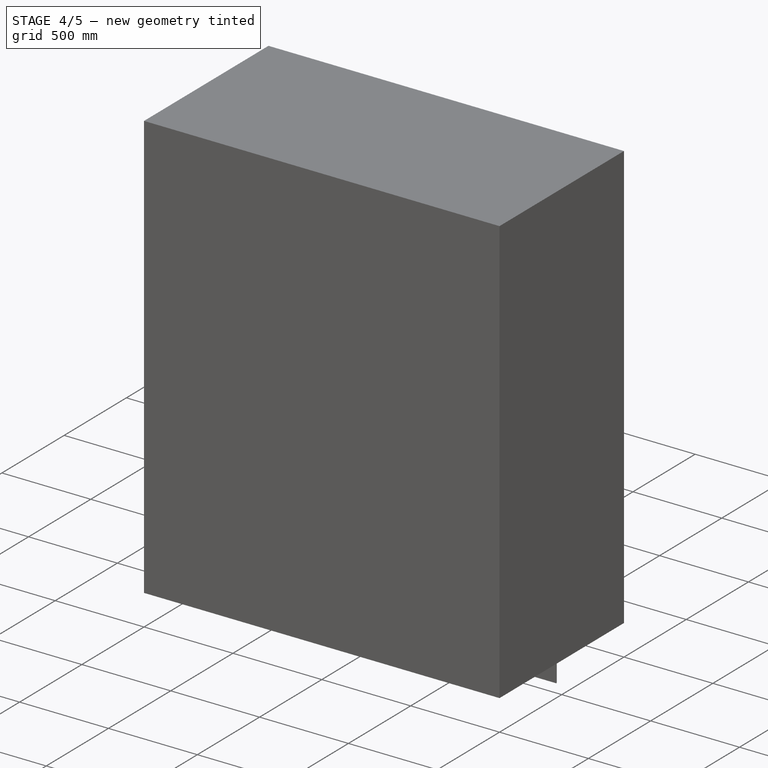
[diagram: stage 4 of 5 — iso view after this stage's code; geometry added in this stage tinted green]
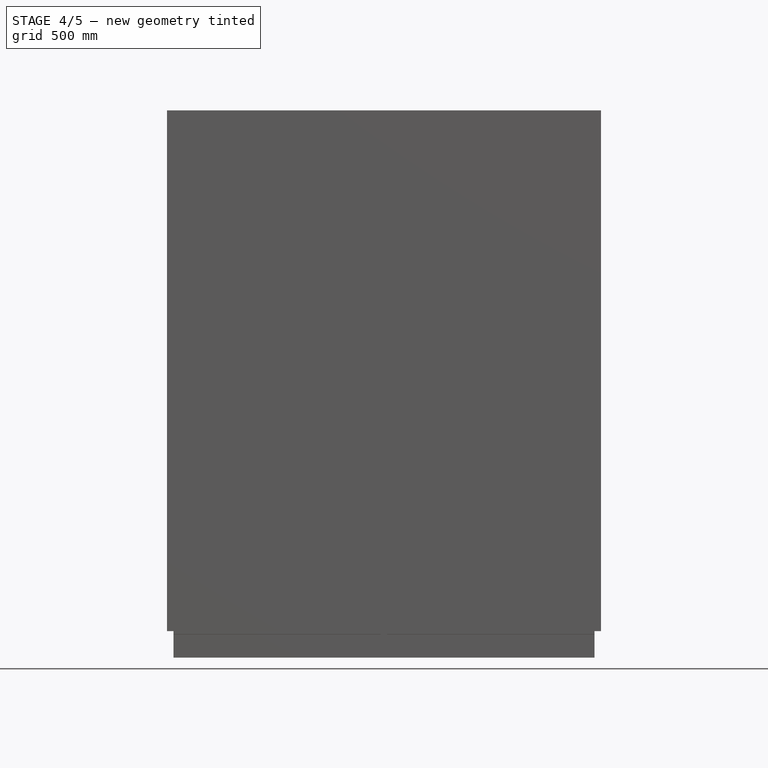
[diagram: stage 4 of 5 — front view after this stage's code; geometry added in this stage tinted green]
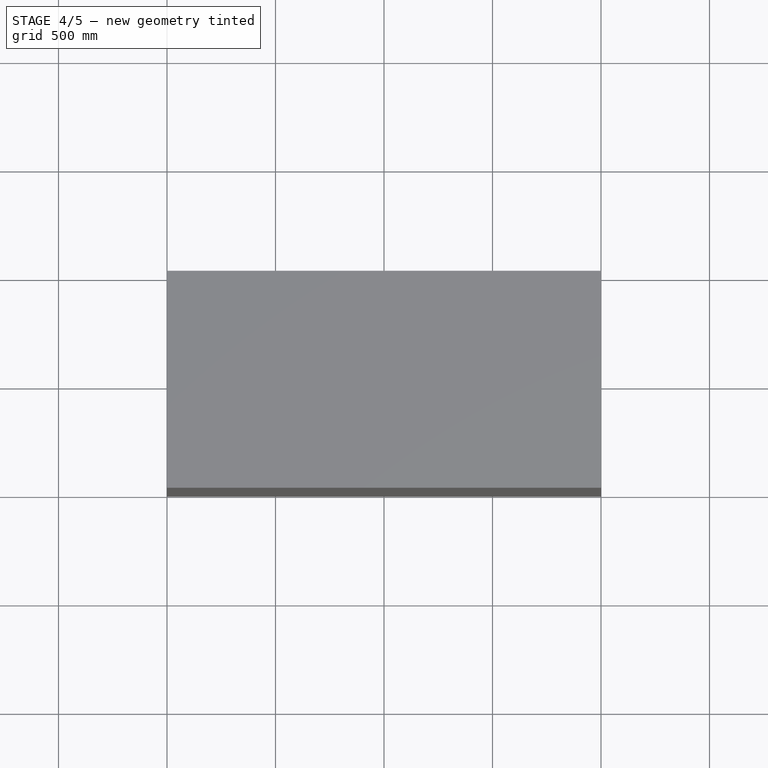
[diagram: stage 4 of 5 — top view after this stage's code; geometry added in this stage tinted green]
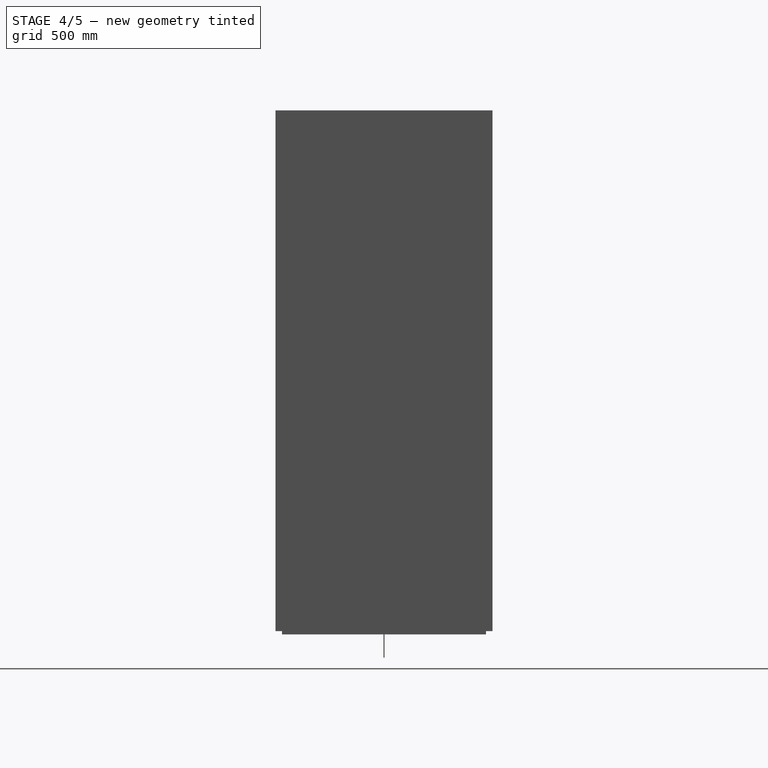
[diagram: stage 4 of 5 — right view after this stage's code; geometry added in this stage tinted green]
FEATURE [PartDesign::Body] Body002  label="jekl003"
  Group = -> [Sketch002,Pad002,Fillet002]
  Origin = -> Origin002
  Placement = pos=(985,-485,0) rot=(0,0,1;0rad)
  Tip = -> Fillet002
  expr: .Placement.Base.x = <<Spreadsheet>>.object_X / 2 - <<Spreadsheet>>.jekl_003_size / 2
  expr: .Placement.Base.y = -<<Spreadsheet>>.object_Y / 2 + <<Spreadsheet>>.jekl_001_size / 2
FEATURE [Sketcher::SketchObject] Sketch003  label="Sketch004"
  FullyConstrained = true
  MapMode = 5
  Support = -> [XY_Plane003]
  expr: Constraints[10] = <<Spreadsheet>>.jekl_004_size
  expr: Constraints[20] = <<Spreadsheet>>.jekl_004_wall_thickness
  sketch-geometry (8):
    g0: LineSegment StartX=-15 StartY=-15 StartZ=0 EndX=15 EndY=-15 EndZ=0
    g1: LineSegment StartX=15 StartY=-15 StartZ=0 EndX=15 EndY=15 EndZ=0
    g2: LineSegment StartX=15 StartY=15 StartZ=0 EndX=-15 EndY=15 EndZ=0
    g3: LineSegment StartX=-15 StartY=15 StartZ=0 EndX=-15 EndY=-15 EndZ=0
    g4: LineSegment StartX=-13 StartY=-13 StartZ=0 EndX=13 EndY=-13 EndZ=0
    g5: LineSegment StartX=13 StartY=-13 StartZ=0 EndX=13 EndY=13 EndZ=0
    g6: LineSegment StartX=13 StartY=13 StartZ=0 EndX=-13 EndY=13 EndZ=0
    g7: LineSegment StartX=-13 StartY=13 StartZ=0 EndX=-13 EndY=-13 EndZ=0
  constraints (22):
    c: Coincident(g0,g1)
    c: Coincident(g1,g2)
    c: Coincident(g2,g3)
    c: Coincident(g3,g0)
    c: Horizontal(g0)
    c: Horizontal(g2)
    c: Vertical(g1)
    c: Vertical(g3)
    c: Symmetric(g1,g0,g-1)
    c: Equal(g1,g0)
    c: Distance(g0) = 30
    c: Coincident(g4,g5)
    c: Coincident(g5,g6)
    c: Coincident(g6,g7)
    c: Coincident(g7,g4)
    c: Horizontal(g4)
    c: Horizontal(g6)
    c: Vertical(g5)
    c: Vertical(g7)
    c: Symmetric(g5,g4,g-1)
    c: Distance(g4) = 26
    c: Equal(g4,g5)
FEATURE [PartDesign::Pad] Pad003  label="Pad004"
  Direction = (0,0,1)
  Length = 2400
  Length2 = 10
  Profile = -> Sketch003
  ReferenceAxis = -> Sketch003 [N_Axis]
  Type = 0
  expr: Length = <<Spreadsheet>>.jekl_004_height
FEATURE [PartDesign::Fillet] Fillet003  label="Fillet004"
  Base = -> Pad003 [Edge2,Edge5,Edge8,Edge1]
  BaseFeature = -> Pad003
  Radius = 1
  SupportTransform = false
  UseAllEdges = false
  expr: Radius = <<Spreadsheet>>.jekl_004_fillet
FEATURE [PartDesign::Body] Body003  label="jekl004"
  Group = -> [Sketch003,Pad003,Fillet003]
  Origin = -> Origin003
  Placement = pos=(-985,-485,0) rot=(0,0,1;0rad)
  Tip = -> Fillet003
  expr: .Placement.Base.x = -<<Spreadsheet>>.object_X / 2 + <<Spreadsheet>>.jekl_003_size / 2
  expr: .Placement.Base.y = -<<Spreadsheet>>.object_Y / 2 + <<Spreadsheet>>.jekl_001_size / 2
FEATURE [Sketcher::SketchObject] Sketch004  label="Sketch008"
  FullyConstrained = true
  MapMode = 5
  Placement = pos=(0,0,0) rot=(0.57735,0.57735,0.57735;2.0944rad)
  Support = -> [YZ_Plane005]
  expr: Constraints[10] = <<Spreadsheet>>.jekl_008_size
  expr: Constraints[21] = <<Spreadsheet>>.jekl_008_wall_thickness
  sketch-geometry (8):
    g0: LineSegment StartX=-15 StartY=-15 StartZ=0 EndX=15 EndY=-15 EndZ=0
    g1: LineSegment StartX=15 StartY=-15 StartZ=0 EndX=15 EndY=15 EndZ=0
    g2: LineSegment StartX=15 StartY=15 StartZ=0 EndX=-15 EndY=15 EndZ=0
    g3: LineSegment StartX=-15 StartY=15 StartZ=0 EndX=-15 EndY=-15 EndZ=0
    g4: LineSegment StartX=-13 StartY=-13 StartZ=0 EndX=13 EndY=-13 EndZ=0
    g5: LineSegment StartX=13 StartY=-13 StartZ=0 EndX=13 EndY=13 EndZ=0
    g6: LineSegment StartX=13 StartY=13 StartZ=0 EndX=-13 EndY=13 EndZ=0
    g7: LineSegment StartX=-13 StartY=13 StartZ=0 EndX=-13 EndY=-13 EndZ=0
  constraints (22):
    c: Coincident(g0,g1)
    c: Coincident(g1,g2)
    c: Coincident(g2,g3)
    c: Coincident(g3,g0)
    c: Horizontal(g0)
    c: Horizontal(g2)
    c: Vertical(g1)
    c: Vertical(g3)
    c: Symmetric(g1,g0,g-1)
    c: Equal(g0,g1)
    c: Distance(g0) = 30
    c: Coincident(g4,g5)
    c: Coincident(g5,g6)
    c: Coincident(g6,g7)
    c: Coincident(g7,g4)
    c: Horizontal(g4)
    c: Horizontal(g6)
    c: Vertical(g5)
    c: Vertical(g7)
    c: Symmetric(g5,g4,g-1)
    c: Equal(g5,g4)
    c: Distance(g4) = 26
FEATURE [PartDesign::Pad] Pad004  label="Pad008"
  Direction = (1,-2e-16,3e-16)
  Length = 1940
  Length2 = 10
  Midplane = true
  Placement = pos=(0,0,0) rot=(1,1,1;2.0944rad)
  Profile = -> Sketch004
  ReferenceAxis = -> Sketch004 [N_Axis]
  Type = 0
  expr: Length = <<Spreadsheet>>.jekl_008_height
FEATURE [PartDesign::Fillet] Fillet004  label="Fillet008"
  Base = -> Pad004 [Edge5,Edge2,Edge1,Edge8]
  BaseFeature = -> Pad004
  Placement = pos=(0,0,0) rot=(1,1,1;2.0944rad)
  Radius = 1
  SupportTransform = false
  UseAllEdges = false
  expr: Radius = <<Spreadsheet>>.jekl_008_fillet
FEATURE [PartDesign::Fillet] Fillet005  label="Fillet006"
  Base = -> Pad005 [Edge5,Edge2,Edge1,Edge8]
  BaseFeature = -> Pad005
  Placement = pos=(0,0,0) rot=(1,1,1;2.0944rad)
  Radius = 1
  SupportTransform = false
  UseAllEdges = false
  expr: Radius = <<Spreadsheet>>.jekl_006_fillet
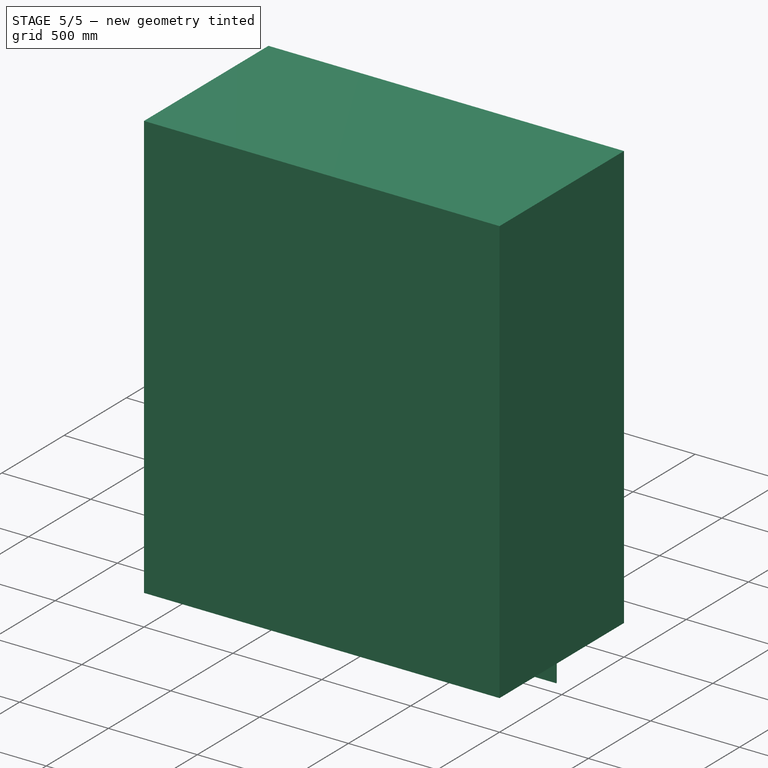
[diagram: stage 5 of 5 — iso view after this stage's code; geometry added in this stage tinted green]
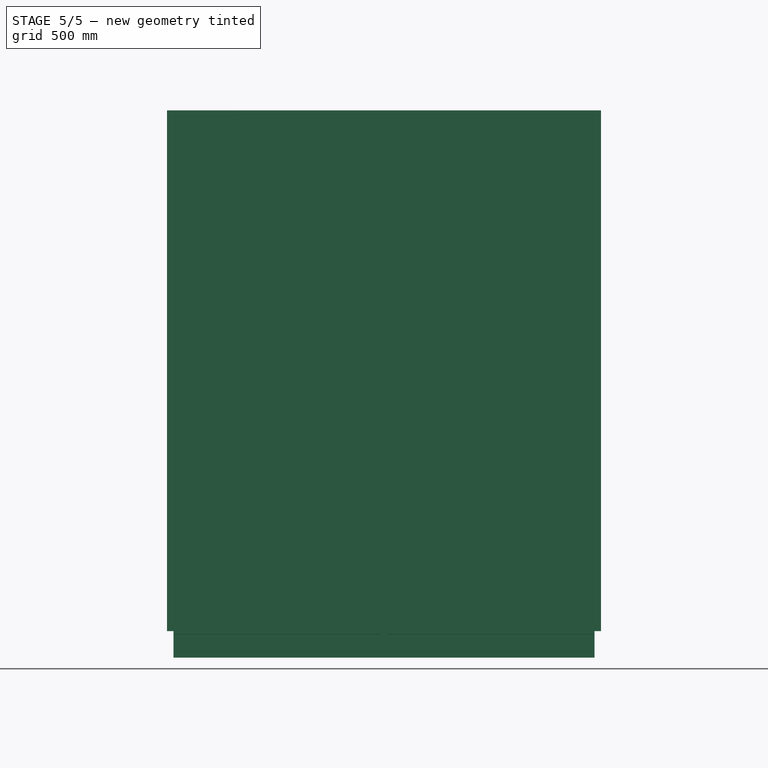
[diagram: stage 5 of 5 — front view after this stage's code; geometry added in this stage tinted green]
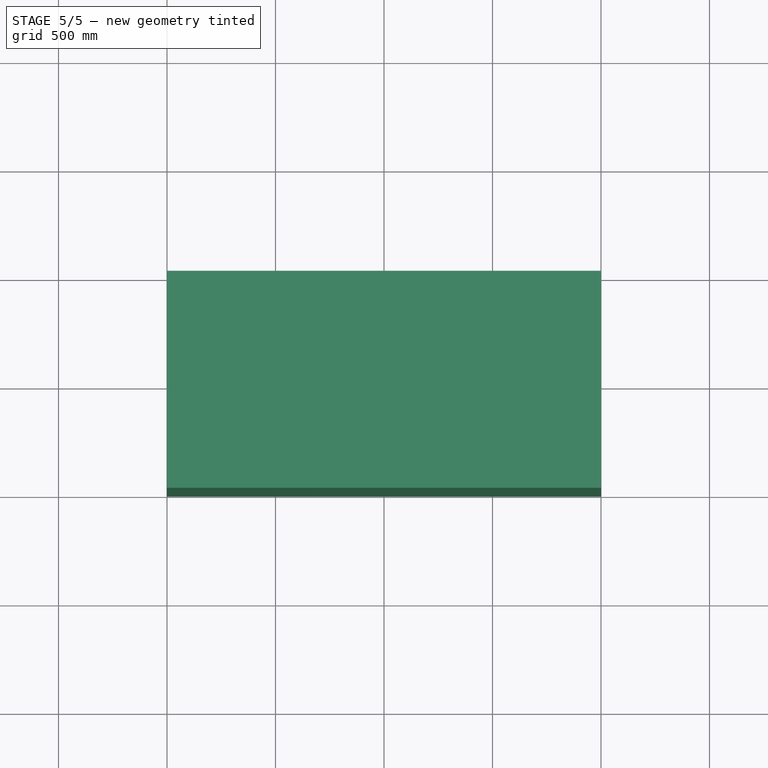
[diagram: stage 5 of 5 — top view after this stage's code; geometry added in this stage tinted green]
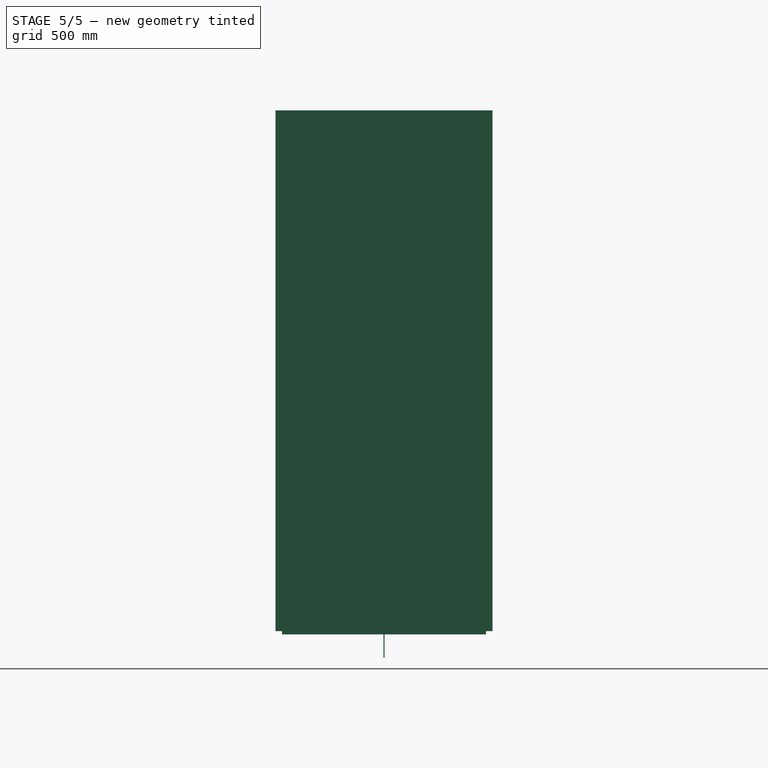
[diagram: stage 5 of 5 — right view after this stage's code; geometry added in this stage tinted green]
FEATURE [Spreadsheet::Sheet] Spreadsheet
  cells = A1='NAME; B1='DEFAULT; C1='VALUE; D1='COMMENT; A2='Main Configuration; A3='jekl_size; B3==30 mm; C3(jekl_size)==30 mm; D3='30mm measured; A4='jekl_wall_thickness; B4==4 mm; C4(jekl_wall_thickness)==4 mm; D4='4mm measured; A5='object_X; B5==2000 mm; C5(object_X)==2000 mm; A6='object_Y; B6==100 mm; C6(object_Y)==1000 mm; A7='object_Z; B7==2400 mm; C7(object_Z)==2400 mm; D7='2200~2500 mm requested; A8='object_ground_clearance; B8==300 mm; C8(object_ground_clearance)==300 mm; A9='object_top_offset; B9==250 mm; C9(object_top_offset)==250 mm; D9='200~300 mm requested; A10='plate_thickness; B10==5 mm; C10(plate_thickness)==5 mm; A12='Fine Adjustments; A13='jekl_001_size; B13==20 mm; C13(jekl_001_size)==jekl_size; A14='jekl_001_wall_thickness; B14==2 mm; C14(jekl_001_wall_thickness)==jekl_001_size - jekl_wall_thickness; A15='jekl_001_height; B15==240 mm; C15(jekl_001_height)==object_Z; A16='jekl_001_fillet; B16==1 mm; C16(jekl_001_fillet)==1 mm; A18='jekl_002_size; B18==20 mm; C18(jekl_002_size)==jekl_size; A19='jekl_002_wall_thickness; B19==2 mm; C19(jekl_002_wall_thickness)==jekl_002_size - jekl_wall_thickness; A20='jekl_002_height; B20==240 mm; C20(jekl_002_height)==object_Z; A21='jekl_002_fillet; B21==1 mm; C21(jekl_002_fillet)==1 mm; A23='jekl_003_size; B23==20 mm; C23(jekl_003_size)==jekl_size; A24='jekl_003_wall_thickness; B24==2 mm; C24(jekl_003_wall_thickness)==jekl_003_size - jekl_wall_thickness; A25='jekl_003_height; B25==240 mm; C25(jekl_003_height)==object_Z; A26='jekl_003_fillet; B26==1 mm; C26(jekl_003_fillet)==1 mm; A28='jekl_004_size; B28==20 mm; C28(jekl_004_size)==jekl_size; A29='jekl_004_wall_thickness; B29==2 mm; C29(jekl_004_wall_thickness)==jekl_004_size - jekl_wall_thickness; A30='jekl_004_height; B30==240 mm; C30(jekl_004_height)==object_Z; A31='jekl_004_fillet; B31==1 mm; C31(jekl_004_fillet)==1 mm; A33='jekl_005_size; B33==20 mm; C33(jekl_005_size)==jekl_size; A34='jekl_005_wall_thickness; B34==2 mm; C34(jekl_005_wall_thickness)==jekl_005_size - jekl_wall_thickness; A35='jekl_005_height; B35==240 mm; C35(jekl_005_height)==object_Y - jekl_001_size - jekl_004_size; A36='jekl_005_fillet; B36==1 mm; C36(jekl_005_fillet)==1 mm; A38='jekl_006_size; B38==20 mm; C38(jekl_006_size)==jekl_size; A39='jekl_006_wall_thickness; B39==2 mm; C39(jekl_006_wall_thickness)==jekl_006_size - jekl_wall_thickness; A40='jekl_006_height; B40==240 mm; C40(jekl_006_height)==object_X - jekl_001_size - jekl_002_size; A41='jekl_006_fillet; B41==1 mm; C41(jekl_006_fillet)==1 mm; A43='jekl_007_size; B43==20 mm; C43(jekl_007_size)==jekl_size; A44='jekl_007_wall_thickness; B44==2 mm; C44(jekl_007_wall_thickness)==jekl_007_size - jekl_wall_thickness; A45='jekl_007_height; B45==240 mm; C45(jekl_007_height)==object_Y - jekl_002_size - jekl_003_size; A46='jekl_007_fillet; B46==1 mm; C46(jekl_007_fillet)==1 mm; A48='jekl_008_size; B48==20 mm; C48(jekl_008_size)==jekl_size; A49='jekl_008_wall_thickness; B49==2 mm; C49(jekl_008_wall_thickness)==jekl_008_size - jekl_wall_thickness; A50='jekl_008_height; B50==240 mm; C50(jekl_008_height)==object_X - jekl_004_size - jekl_003_size; A51='jekl_008_fillet; B51==1 mm; C51(jekl_008_fillet)==1 mm; A53='jekl_009_size; B53==20 mm; C53(jekl_009_size)==jekl_size; A54='jekl_009_wall_thickness; B54==2 mm; C54(jekl_009_wall_thickness)==jekl_009_size - jekl_wall_thickness; A55='jekl_009_height; B55==240 mm; C55(jekl_009_height)==object_Y - jekl_001_size - jekl_004_size; A56='jekl_009_fillet; B56==1 mm; C56(jekl_009_fillet)==1 mm; A58='jekl_010_size; B58==20 mm; C58(jekl_010_size)==jekl_size; A59='jekl_010_wall_thickness; B59==2 mm; C59(jekl_010_wall_thickness)==jekl_010_size - jekl_wall_thickness; A60='jekl_010_height; B60==240 mm; C60(jekl_010_height)==object_X - jekl_001_size - jekl_002_size; A61='jekl_010_fillet; B61==1 mm; C61(jekl_010_fillet)==1 mm; A63='jekl_011_size; B63==20 mm; C63(jekl_011_size)==jekl_size; A64='jekl_011_wall_thickness; B64==2 mm; C64(jekl_011_wall_thickness)==jekl_011_size - jekl_wall_thickness; A65='jekl_011_height; B65==240 mm; C65(jekl_011_height)==object_Y - jekl_002_size - jekl_003_size; A66='jekl_011_fillet; B66==1 mm; C66(jekl_011_fillet)==1 mm; A68='jekl_012_size; B68==20 mm; C68(jekl_012_size)==jekl_size; A69='jekl_012_wall_thickness; B69==2 mm; C69(jekl_012_wall_thickness)==jekl_012_size - jekl_wall_thickness; A70='jekl_012_height; B70==240 mm; C70(jekl_012_height)==object_X - jekl_004_size - jekl_003_size; A71='jekl_012_fillet; B71==1 mm; C71(jekl_012_fillet)==1 mm; A73='plate001_X; B73==object_X; C73(plate001_X)==object_X; A74='plate001_Y; B74==object_Y; C74(plate001_Y)==object_Y; A75='plate001_thickness; B75==5 mm; C75(plate001_thickness)==plate_thickness; D75='approx.; A77='plate002_X; B77==object_X; C77(plate002_X)==object_X; A78='plate002_Y; B78==object_Y; C78(plate002_Y)==object_Y; A79='plate002_thickness; B79==5 mm; C79(plate002_thickness)==plate_thickness; D79='approx.; A81='plate003_X; B81==object_X; +8 more cells
FEATURE [Sketcher::SketchObject] Sketch  label="Sketch001"
  FullyConstrained = true
  MapMode = 5
  Support = -> [XY_Plane]
  expr: Constraints[10] = Spreadsheet.C13
  expr: Constraints[20] = <<Spreadsheet>>.jekl_001_wall_thickness
  sketch-geometry (8):
    g0: LineSegment StartX=-15 StartY=-15 StartZ=0 EndX=15 EndY=-15 EndZ=0
    g1: LineSegment StartX=15 StartY=-15 StartZ=0 EndX=15 EndY=15 EndZ=0
    g2: LineSegment StartX=15 StartY=15 StartZ=0 EndX=-15 EndY=15 EndZ=0
    g3: LineSegment StartX=-15 StartY=15 StartZ=0 EndX=-15 EndY=-15 EndZ=0
    g4: LineSegment StartX=-13 StartY=-13 StartZ=0 EndX=13 EndY=-13 EndZ=0
    g5: LineSegment StartX=13 StartY=-13 StartZ=0 EndX=13 EndY=13 EndZ=0
    g6: LineSegment StartX=13 StartY=13 StartZ=0 EndX=-13 EndY=13 EndZ=0
    g7: LineSegment StartX=-13 StartY=13 StartZ=0 EndX=-13 EndY=-13 EndZ=0
  constraints (22):
    c: Coincident(g0,g1)
    c: Coincident(g1,g2)
    c: Coincident(g2,g3)
    c: Coincident(g3,g0)
    c: Horizontal(g0)
    c: Horizontal(g2)
    c: Vertical(g1)
    c: Vertical(g3)
    c: Symmetric(g1,g0,g-1)
    c: Equal(g1,g0)
    c: Distance(g0) = 30
    c: Coincident(g4,g5)
    c: Coincident(g5,g6)
    c: Coincident(g6,g7)
    c: Coincident(g7,g4)
    c: Horizontal(g4)
    c: Horizontal(g6)
    c: Vertical(g5)
    c: Vertical(g7)
    c: Symmetric(g5,g4,g-1)
    c: Distance(g4) = 26
    c: Equal(g4,g5)
FEATURE [PartDesign::Pad] Pad  label="Pad001"
  Direction = (0,0,1)
  Length = 2400
  Length2 = 10
  Profile = -> Sketch
  ReferenceAxis = -> Sketch [N_Axis]
  Type = 0
  expr: Length = Spreadsheet.jekl_001_height
FEATURE [PartDesign::Fillet] Fillet  label="Fillet001"
  Base = -> Pad [Edge2,Edge5,Edge8,Edge1]
  BaseFeature = -> Pad
  Radius = 1
  SupportTransform = false
  UseAllEdges = false
  expr: Radius = <<Spreadsheet>>.jekl_002_fillet
FEATURE [PartDesign::Body] Body  label="jekl001"
  Group = -> [Sketch,Pad,Fillet]
  Origin = -> Origin
  Placement = pos=(-985,485,0) rot=(0,0,1;0rad)
  Tip = -> Fillet
  expr: .Placement.Base.x = -<<Spreadsheet>>.object_X / 2 + <<Spreadsheet>>.jekl_001_size / 2
  expr: .Placement.Base.y = <<Spreadsheet>>.object_Y / 2 - <<Spreadsheet>>.jekl_001_size / 2
FEATURE [Sketcher::SketchObject] Sketch001  label="Sketch002"
  FullyConstrained = true
  MapMode = 5
  Support = -> [XY_Plane001]
  expr: Constraints[10] = <<Spreadsheet>>.jekl_002_size
  expr: Constraints[20] = <<Spreadsheet>>.jekl_002_wall_thickness
  sketch-geometry (8):
    g0: LineSegment StartX=-15 StartY=-15 StartZ=0 EndX=15 EndY=-15 EndZ=0
    g1: LineSegment StartX=15 StartY=-15 StartZ=0 EndX=15 EndY=15 EndZ=0
    g2: LineSegment StartX=15 StartY=15 StartZ=0 EndX=-15 EndY=15 EndZ=0
    g3: LineSegment StartX=-15 StartY=15 StartZ=0 EndX=-15 EndY=-15 EndZ=0
    g4: LineSegment StartX=-13 StartY=-13 StartZ=0 EndX=13 EndY=-13 EndZ=0
    g5: LineSegment StartX=13 StartY=-13 StartZ=0 EndX=13 EndY=13 EndZ=0
    g6: LineSegment StartX=13 StartY=13 StartZ=0 EndX=-13 EndY=13 EndZ=0
    g7: LineSegment StartX=-13 StartY=13 StartZ=0 EndX=-13 EndY=-13 EndZ=0
  constraints (22):
    c: Coincident(g0,g1)
    c: Coincident(g1,g2)
    c: Coincident(g2,g3)
    c: Coincident(g3,g0)
    c: Horizontal(g0)
    c: Horizontal(g2)
    c: Vertical(g1)
    c: Vertical(g3)
    c: Symmetric(g1,g0,g-1)
    c: Equal(g1,g0)
    c: Distance(g0) = 30
    c: Coincident(g4,g5)
    c: Coincident(g5,g6)
    c: Coincident(g6,g7)
    c: Coincident(g7,g4)
    c: Horizontal(g4)
    c: Horizontal(g6)
    c: Vertical(g5)
    c: Vertical(g7)
    c: Symmetric(g5,g4,g-1)
    c: Distance(g4) = 26
    c: Equal(g4,g5)
FEATURE [PartDesign::Pad] Pad001  label="Pad002"
  Direction = (0,0,1)
  Length = 2400
  Length2 = 10
  Profile = -> Sketch001
  ReferenceAxis = -> Sketch001 [N_Axis]
  Type = 0
  expr: Length = <<Spreadsheet>>.jekl_002_height
FEATURE [PartDesign::Fillet] Fillet001  label="Fillet002"
  Base = -> Pad001 [Edge2,Edge5,Edge8,Edge1]
  BaseFeature = -> Pad001
  Radius = 1
  SupportTransform = false
  UseAllEdges = false
  expr: Radius = <<Spreadsheet>>.jekl_002_fillet
FEATURE [PartDesign::Body] Body001  label="jekl002"
  Group = -> [Sketch001,Pad001,Fillet001]
  Origin = -> Origin001
  Placement = pos=(985,485,0) rot=(0,0,1;0rad)
  Tip = -> Fillet001
  expr: .Placement.Base.x = <<Spreadsheet>>.object_X / 2 - <<Spreadsheet>>.jekl_002_size / 2
  expr: .Placement.Base.y = <<Spreadsheet>>.object_Y / 2 - <<Spreadsheet>>.jekl_001_size / 2
FEATURE [Sketcher::SketchObject] Sketch002  label="Sketch003"
  FullyConstrained = true
  MapMode = 5
  Support = -> [XY_Plane002]
  expr: Constraints[10] = <<Spreadsheet>>.jekl_003_size
  expr: Constraints[20] = <<Spreadsheet>>.jekl_003_wall_thickness
  sketch-geometry (8):
    g0: LineSegment StartX=-15 StartY=-15 StartZ=0 EndX=15 EndY=-15 EndZ=0
    g1: LineSegment StartX=15 StartY=-15 StartZ=0 EndX=15 EndY=15 EndZ=0
    g2: LineSegment StartX=15 StartY=15 StartZ=0 EndX=-15 EndY=15 EndZ=0
    g3: LineSegment StartX=-15 StartY=15 StartZ=0 EndX=-15 EndY=-15 EndZ=0
    g4: LineSegment StartX=-13 StartY=-13 StartZ=0 EndX=13 EndY=-13 EndZ=0
    g5: LineSegment StartX=13 StartY=-13 StartZ=0 EndX=13 EndY=13 EndZ=0
    g6: LineSegment StartX=13 StartY=13 StartZ=0 EndX=-13 EndY=13 EndZ=0
    g7: LineSegment StartX=-13 StartY=13 StartZ=0 EndX=-13 EndY=-13 EndZ=0
  constraints (22):
    c: Coincident(g0,g1)
    c: Coincident(g1,g2)
    c: Coincident(g2,g3)
    c: Coincident(g3,g0)
    c: Horizontal(g0)
    c: Horizontal(g2)
    c: Vertical(g1)
    c: Vertical(g3)
    c: Symmetric(g1,g0,g-1)
    c: Equal(g1,g0)
    c: Distance(g0) = 30
    c: Coincident(g4,g5)
    c: Coincident(g5,g6)
    c: Coincident(g6,g7)
    c: Coincident(g7,g4)
    c: Horizontal(g4)
    c: Horizontal(g6)
    c: Vertical(g5)
    c: Vertical(g7)
    c: Symmetric(g5,g4,g-1)
    c: Distance(g4) = 26
    c: Equal(g4,g5)
FEATURE [PartDesign::Pad] Pad002  label="Pad003"
  Direction = (0,0,1)
  Length = 2400
  Length2 = 10
  Profile = -> Sketch002
  ReferenceAxis = -> Sketch002 [N_Axis]
  Type = 0
  expr: Length = <<Spreadsheet>>.jekl_003_height
FEATURE [PartDesign::Fillet] Fillet002  label="Fillet003"
  Base = -> Pad002 [Edge2,Edge5,Edge8,Edge1]
  BaseFeature = -> Pad002
  Radius = 1
  SupportTransform = false
  UseAllEdges = false
  expr: Radius = <<Spreadsheet>>.jekl_003_fillet
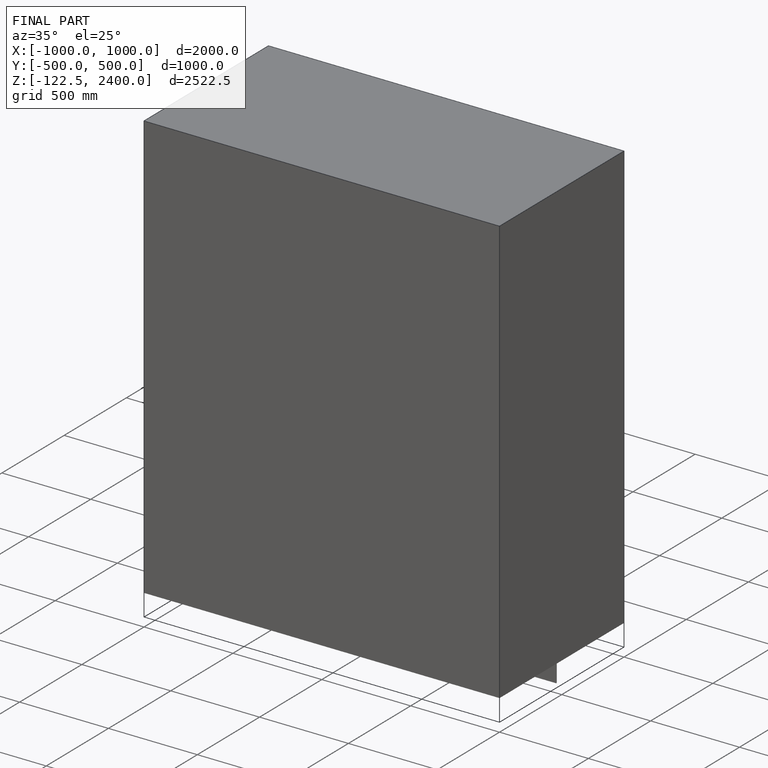
[diagram: finished part — iso view with bounding-box wireframe]
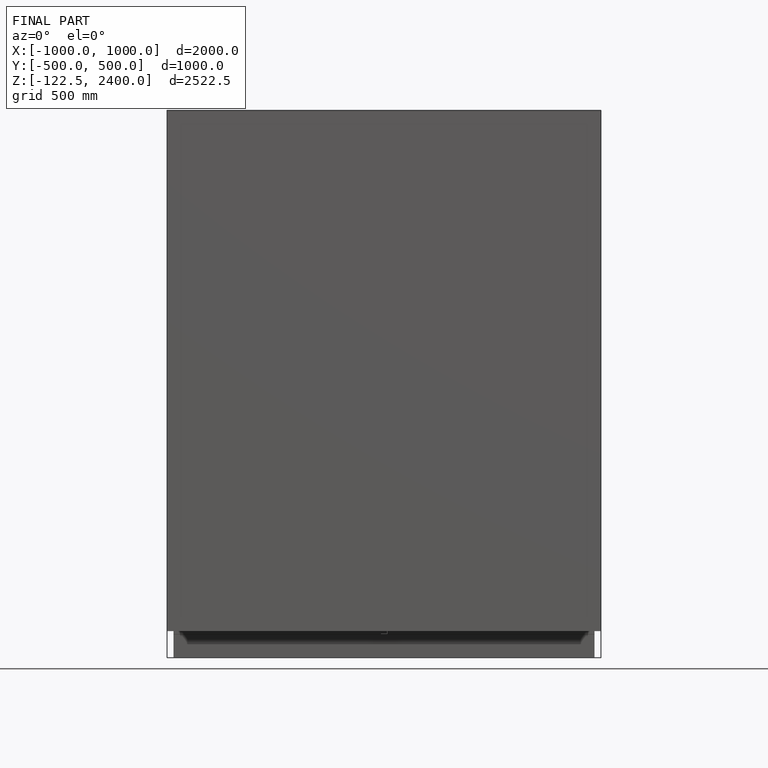
[diagram: finished part — front view with bounding-box wireframe]
